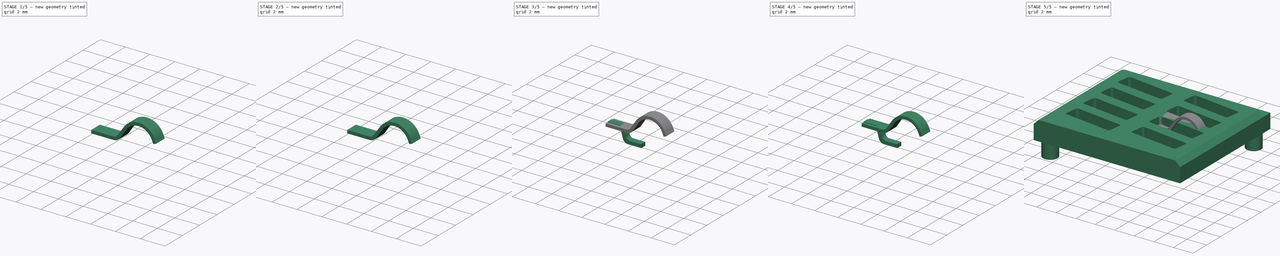
[diagram: build sequence overview — one tinted view per stage of 5, left to right]
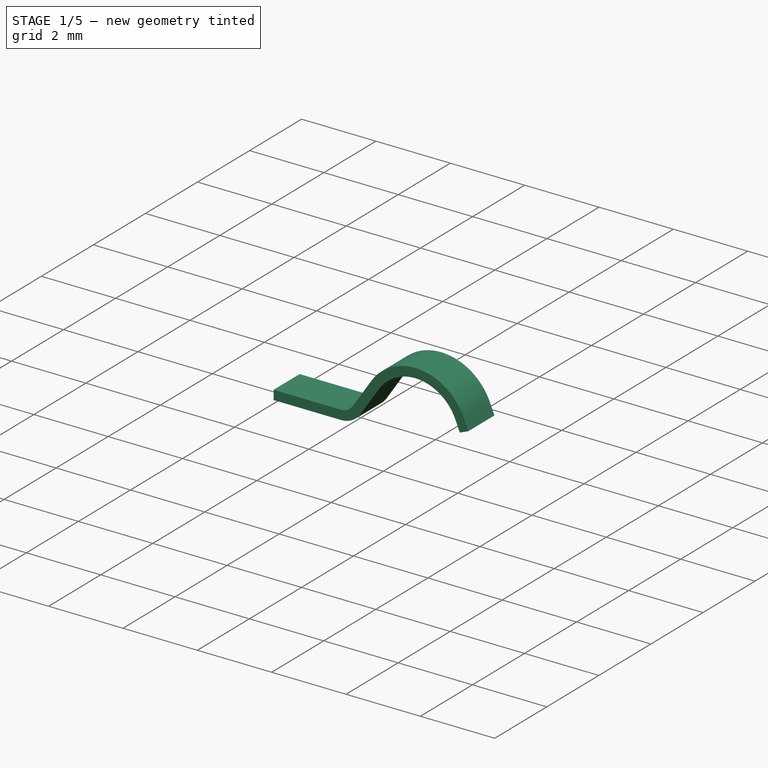
[diagram: stage 1 of 5 — iso view after this stage's code; geometry added in this stage tinted green]
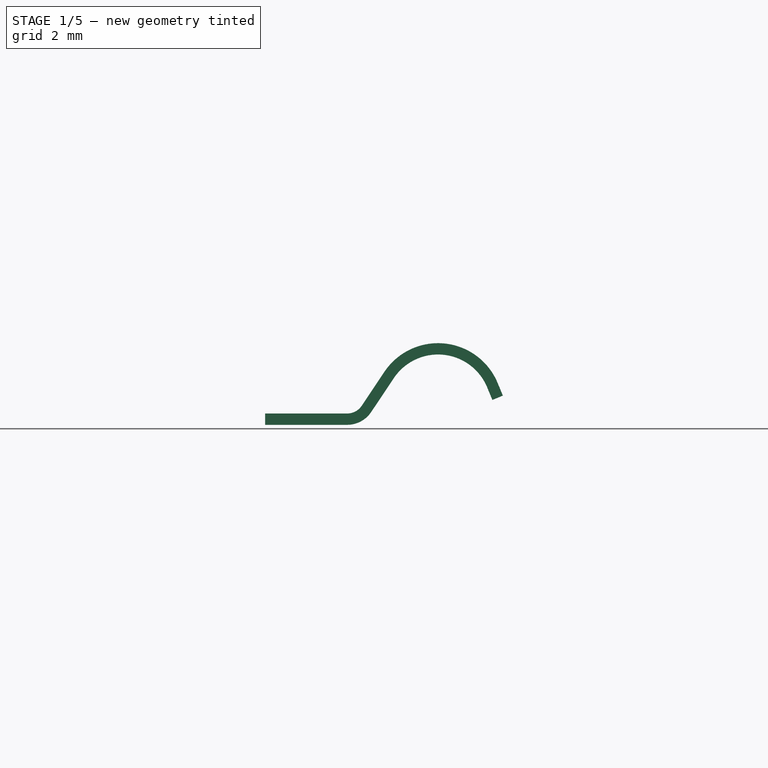
[diagram: stage 1 of 5 — front view after this stage's code; geometry added in this stage tinted green]
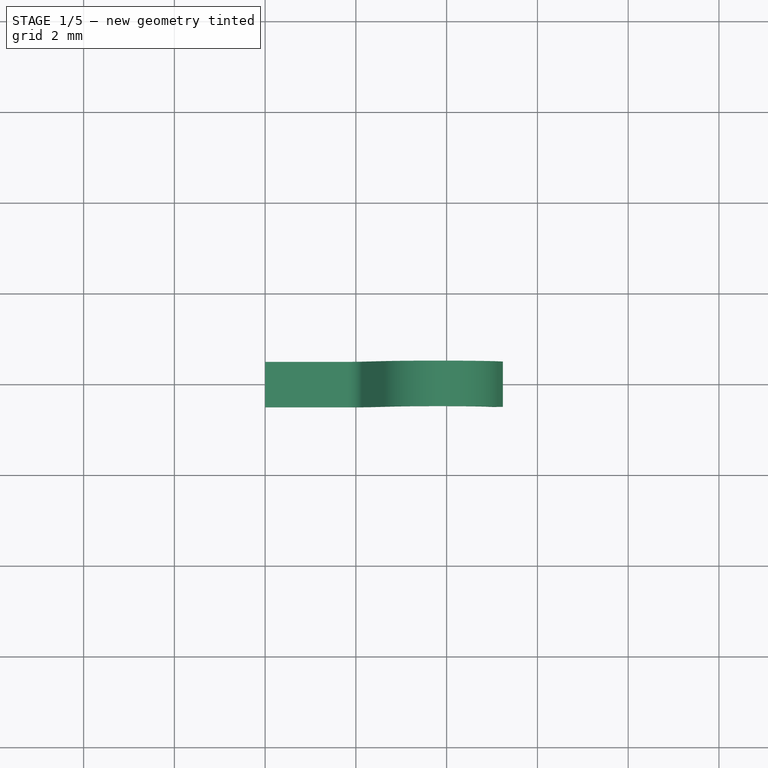
[diagram: stage 1 of 5 — top view after this stage's code; geometry added in this stage tinted green]
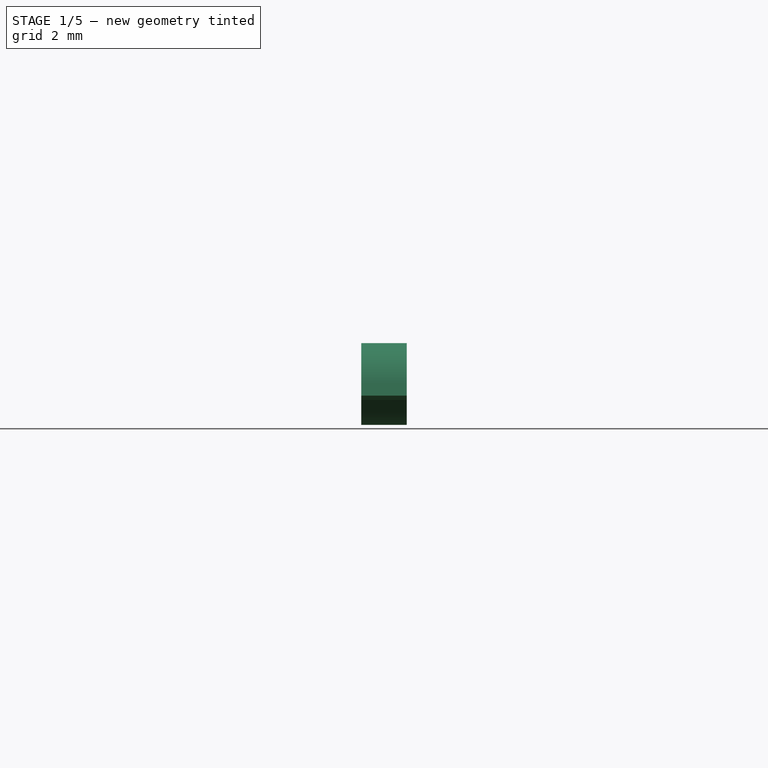
[diagram: stage 1 of 5 — right view after this stage's code; geometry added in this stage tinted green]
FCSTD DOCUMENT  (FreeCAD 0.18.4R)
Label: Amphenol_C707_10M006_052_2
License: All rights reserved
LicenseURL: http://en.wikipedia.org/wiki/All_rights_reserved
objects: Sketcher::SketchObject×19, PartDesign::Pad×18, PartDesign::Body×17, PartDesign::Pocket×1, PartDesign::Chamfer×1, App::Part×1
note: 75 computed .brp shape members not serialized (recipe doc carries the construction recipe); baked Part::Feature solids carry a one-line shape summary decoded from their .brp

FEATURE [PartDesign::Body] Body028  label="SpringContact8"
  Group = -> [Sketch030,Pad029]
  Origin = -> Origin025
  Placement = pos=(0,4.34,0) rot=(0,0,-1;0.1309rad)
  Tip = -> Pad029
FEATURE [Sketcher::SketchObject] Sketch031
  MapMode = 5
  Placement = pos=(0,0,0) rot=(1,0,0;1.5708rad)
  Support = -> [XZ_Plane026]
  sketch-geometry (15):
    g0: LineSegment StartX=2.33674 StartY=1.28281 StartZ=0 EndX=2.8356 EndY=2.02924 EndZ=0
    g1: LineSegment StartX=4.89307 StartY=1.82578 StartZ=0 EndX=5.00769 EndY=1.54854 EndZ=0
    g2: LineSegment StartX=0 StartY=1 StartZ=0 EndX=0 EndY=1.25 EndZ=0
    g3: ArcOfCircle CenterX=1.80757 CenterY=1.63647 CenterZ=0 NormalX=0 NormalY=0 NormalZ=1 AngleXU=0 Radius=0.636473 StartAngle=4.71239 EndAngle=5.69403
    g4: ArcOfCircle CenterX=3.81 CenterY=1.37802 CenterZ=0 NormalX=0 NormalY=0 NormalZ=1 AngleXU=0 Radius=1.17198 StartAngle=0.392021 EndAngle=2.55244
    g5: LineSegment StartX=5.00769 StartY=1.54854 StartZ=0 EndX=5.23873 EndY=1.64406 EndZ=0
    g6: LineSegment StartX=5.23873 StartY=1.64406 StartZ=0 EndX=5.12411 EndY=1.9213 EndZ=0
    g7: LineSegment StartX=0 StartY=1.25 StartZ=0 EndX=1.80757 EndY=1.25 EndZ=0
    g8: LineSegment StartX=2.12889 StartY=1.42173 StartZ=0 EndX=2.62775 EndY=2.16816 EndZ=0
    g9: ArcOfCircle CenterX=3.81 CenterY=1.37802 CenterZ=0 NormalX=0 NormalY=0 NormalZ=1 AngleXU=0 Radius=1.42198 StartAngle=0.392021 EndAngle=2.55244
    g10: ArcOfCircle CenterX=1.80757 CenterY=1.63647 CenterZ=0 NormalX=0 NormalY=0 NormalZ=1 AngleXU=0 Radius=0.386473 StartAngle=4.71239 EndAngle=5.69403
    g11: LineSegment [constr] StartX=0 StartY=2 StartZ=0 EndX=5.94744 EndY=2 EndZ=0
    g12: GeomPoint X=3.81 Y=2.8 Z=0
    g13: GeomPoint X=3.81 Y=2.55 Z=0
    g14: LineSegment StartX=0 StartY=1 StartZ=0 EndX=1.80757 EndY=1 EndZ=0
  constraints (36):
    c: Tangent(g0,g3) = -1.5708
    c: Tangent(g0,g4) = 1.5708
    c: Tangent(g1,g4) = 1.5708
    c: Coincident(g1,g5)
    c: Coincident(g5,g6)
    c: Coincident(g2,g7)
    c: Horizontal(g7)
    c: Tangent(g6,g9) = -1.5708
    c: Tangent(g8,g9) = 1.5708
    c: Perpendicular(g5,g1)
    c: Perpendicular(g6,g5)
    c: Tangent(g7,g10) = -1.5708
    c: Tangent(g8,g10) = -1.5708
    c: Parallel(g8,g0)
    c: Distance(g5) = 0.25
    c: Equal(g2,g5)
    c: PointOnObject(g11,g-2)
    c: Horizontal(g11)
    c: PointOnObject(g12,g9)
    c: Vertical(g12,g9)
    c: DistanceY(g11,g12) = 0.8
    c: PointOnObject(g13,g4)
    c: Vertical(g13,g4)
    c: DistanceY(g13,g12) = 0.25
    c: Vertical(g12,g13)
    c: DistanceX(g-1,g12) = 3.81
    c: DistanceY(g-1,g11) = 2
    c: DistanceY(g-1,g2) = 1
    c: Coincident(g14,g2)
    c: Coincident(g14,g3)
    c: Horizontal(g14)
    c: Distance(g6) = 0.3
    c: Distance(g7,g3) = 0.25
    c: Distance(g8,g0) = 0.25
    c: Vertical(g2)
    c: PointOnObject(g2,g-2)
FEATURE [PartDesign::Pad] Pad030  label="SpringContact_Pad004"
  Length = 1
  Length2 = 100
  Midplane = true
  Placement = pos=(0,0,0) rot=(1,0,0;1.5708rad)
  Profile = -> Sketch031
  Type = 0
FEATURE [PartDesign::Body] Body029  label="SpringContact1"
  Group = -> [Sketch031,Pad030]
  Origin = -> Origin026
  Placement = pos=(0,-4.32,0) rot=(0,0,-1;3.27249rad)
  Tip = -> Pad030
FEATURE [Sketcher::SketchObject] Sketch032
  MapMode = 5
  Placement = pos=(0,0,0) rot=(1,0,0;1.5708rad)
  Support = -> [XZ_Plane027]
  sketch-geometry (15):
    g0: LineSegment StartX=2.33674 StartY=1.28281 StartZ=0 EndX=2.8356 EndY=2.02924 EndZ=0
    g1: LineSegment StartX=4.89307 StartY=1.82578 StartZ=0 EndX=5.00769 EndY=1.54854 EndZ=0
    g2: LineSegment StartX=0 StartY=1 StartZ=0 EndX=0 EndY=1.25 EndZ=0
    g3: ArcOfCircle CenterX=1.80757 CenterY=1.63647 CenterZ=0 NormalX=0 NormalY=0 NormalZ=1 AngleXU=0 Radius=0.636473 StartAngle=4.71239 EndAngle=5.69403
    g4: ArcOfCircle CenterX=3.81 CenterY=1.37802 CenterZ=0 NormalX=0 NormalY=0 NormalZ=1 AngleXU=0 Radius=1.17198 StartAngle=0.392021 EndAngle=2.55244
    g5: LineSegment StartX=5.00769 StartY=1.54854 StartZ=0 EndX=5.23873 EndY=1.64406 EndZ=0
    g6: LineSegment StartX=5.23873 StartY=1.64406 StartZ=0 EndX=5.12411 EndY=1.9213 EndZ=0
    g7: LineSegment StartX=0 StartY=1.25 StartZ=0 EndX=1.80757 EndY=1.25 EndZ=0
    g8: LineSegment StartX=2.12889 StartY=1.42173 StartZ=0 EndX=2.62775 EndY=2.16816 EndZ=0
    g9: ArcOfCircle CenterX=3.81 CenterY=1.37802 CenterZ=0 NormalX=0 NormalY=0 NormalZ=1 AngleXU=0 Radius=1.42198 StartAngle=0.392021 EndAngle=2.55244
    g10: ArcOfCircle CenterX=1.80757 CenterY=1.63647 CenterZ=0 NormalX=0 NormalY=0 NormalZ=1 AngleXU=0 Radius=0.386473 StartAngle=4.71239 EndAngle=5.69403
    g11: LineSegment [constr] StartX=0 StartY=2 StartZ=0 EndX=5.94744 EndY=2 EndZ=0
    g12: GeomPoint X=3.81 Y=2.8 Z=0
    g13: GeomPoint X=3.81 Y=2.55 Z=0
    g14: LineSegment StartX=0 StartY=1 StartZ=0 EndX=1.80757 EndY=1 EndZ=0
  constraints (36):
    c: Tangent(g0,g3) = -1.5708
    c: Tangent(g0,g4) = 1.5708
    c: Tangent(g1,g4) = 1.5708
    c: Coincident(g1,g5)
    c: Coincident(g5,g6)
    c: Coincident(g2,g7)
    c: Horizontal(g7)
    c: Tangent(g6,g9) = -1.5708
    c: Tangent(g8,g9) = 1.5708
    c: Perpendicular(g5,g1)
    c: Perpendicular(g6,g5)
    c: Tangent(g7,g10) = -1.5708
    c: Tangent(g8,g10) = -1.5708
    c: Parallel(g8,g0)
    c: Distance(g5) = 0.25
    c: Equal(g2,g5)
    c: PointOnObject(g11,g-2)
    c: Horizontal(g11)
    c: PointOnObject(g12,g9)
    c: Vertical(g12,g9)
    c: DistanceY(g11,g12) = 0.8
    c: PointOnObject(g13,g4)
    c: Vertical(g13,g4)
    c: DistanceY(g13,g12) = 0.25
    c: Vertical(g12,g13)
    c: DistanceX(g-1,g12) = 3.81
    c: DistanceY(g-1,g11) = 2
    c: DistanceY(g-1,g2) = 1
    c: Coincident(g14,g2)
    c: Coincident(g14,g3)
    c: Horizontal(g14)
    c: Distance(g6) = 0.3
    c: Distance(g7,g3) = 0.25
    c: Distance(g8,g0) = 0.25
    c: Vertical(g2)
    c: PointOnObject(g2,g-2)
FEATURE [PartDesign::Pad] Pad031  label="SpringContact_Pad005"
  Length = 1
  Length2 = 100
  Midplane = true
  Placement = pos=(0,0,0) rot=(1,0,0;1.5708rad)
  Profile = -> Sketch032
  Type = 0
FEATURE [PartDesign::Body] Body030  label="SpringContact2"
  Group = -> [Sketch032,Pad031]
  Origin = -> Origin027
  Placement = pos=(0,-1.78,0) rot=(0,0,1;3.01069rad)
  Tip = -> Pad031
FEATURE [Sketcher::SketchObject] Sketch033
  MapMode = 5
  Placement = pos=(0,0,0) rot=(1,0,0;1.5708rad)
  Support = -> [XZ_Plane028]
  sketch-geometry (15):
    g0: LineSegment StartX=2.33674 StartY=1.28281 StartZ=0 EndX=2.8356 EndY=2.02924 EndZ=0
    g1: LineSegment StartX=4.89307 StartY=1.82578 StartZ=0 EndX=5.00769 EndY=1.54854 EndZ=0
    g2: LineSegment StartX=0 StartY=1 StartZ=0 EndX=0 EndY=1.25 EndZ=0
    g3: ArcOfCircle CenterX=1.80757 CenterY=1.63647 CenterZ=0 NormalX=0 NormalY=0 NormalZ=1 AngleXU=0 Radius=0.636473 StartAngle=4.71239 EndAngle=5.69403
    g4: ArcOfCircle CenterX=3.81 CenterY=1.37802 CenterZ=0 NormalX=0 NormalY=0 NormalZ=1 AngleXU=0 Radius=1.17198 StartAngle=0.392021 EndAngle=2.55244
    g5: LineSegment StartX=5.00769 StartY=1.54854 StartZ=0 EndX=5.23873 EndY=1.64406 EndZ=0
    g6: LineSegment StartX=5.23873 StartY=1.64406 StartZ=0 EndX=5.12411 EndY=1.9213 EndZ=0
    g7: LineSegment StartX=0 StartY=1.25 StartZ=0 EndX=1.80757 EndY=1.25 EndZ=0
    g8: LineSegment StartX=2.12889 StartY=1.42173 StartZ=0 EndX=2.62775 EndY=2.16816 EndZ=0
    g9: ArcOfCircle CenterX=3.81 CenterY=1.37802 CenterZ=0 NormalX=0 NormalY=0 NormalZ=1 AngleXU=0 Radius=1.42198 StartAngle=0.392021 EndAngle=2.55244
    g10: ArcOfCircle CenterX=1.80757 CenterY=1.63647 CenterZ=0 NormalX=0 NormalY=0 NormalZ=1 AngleXU=0 Radius=0.386473 StartAngle=4.71239 EndAngle=5.69403
    g11: LineSegment [constr] StartX=0 StartY=2 StartZ=0 EndX=5.94744 EndY=2 EndZ=0
    g12: GeomPoint X=3.81 Y=2.8 Z=0
    g13: GeomPoint X=3.81 Y=2.55 Z=0
    g14: LineSegment StartX=0 StartY=1 StartZ=0 EndX=1.80757 EndY=1 EndZ=0
  constraints (36):
    c: Tangent(g0,g3) = -1.5708
    c: Tangent(g0,g4) = 1.5708
    c: Tangent(g1,g4) = 1.5708
    c: Coincident(g1,g5)
    c: Coincident(g5,g6)
    c: Coincident(g2,g7)
    c: Horizontal(g7)
    c: Tangent(g6,g9) = -1.5708
    c: Tangent(g8,g9) = 1.5708
    c: Perpendicular(g5,g1)
    c: Perpendicular(g6,g5)
    c: Tangent(g7,g10) = -1.5708
    c: Tangent(g8,g10) = -1.5708
    c: Parallel(g8,g0)
    c: Distance(g5) = 0.25
    c: Equal(g2,g5)
    c: PointOnObject(g11,g-2)
    c: Horizontal(g11)
    c: PointOnObject(g12,g9)
    c: Vertical(g12,g9)
    c: DistanceY(g11,g12) = 0.8
    c: PointOnObject(g13,g4)
    c: Vertical(g13,g4)
    c: DistanceY(g13,g12) = 0.25
    c: Vertical(g12,g13)
    c: DistanceX(g-1,g12) = 3.81
    c: DistanceY(g-1,g11) = 2
    c: DistanceY(g-1,g2) = 1
    c: Coincident(g14,g2)
    c: Coincident(g14,g3)
    c: Horizontal(g14)
    c: Distance(g6) = 0.3
    c: Distance(g7,g3) = 0.25
    c: Distance(g8,g0) = 0.25
    c: Vertical(g2)
    c: PointOnObject(g2,g-2)
FEATURE [PartDesign::Pad] Pad032  label="SpringContact_Pad006"
  Length = 1
  Length2 = 100
  Midplane = true
  Placement = pos=(0,0,0) rot=(1,0,0;1.5708rad)
  Profile = -> Sketch033
  Type = 0
FEATURE [PartDesign::Body] Body031  label="SpringContact3"
  Group = -> [Sketch033,Pad032]
  Origin = -> Origin028
  Placement = pos=(0,0.76,0) rot=(0,0,1;3.01069rad)
  Tip = -> Pad032
FEATURE [Sketcher::SketchObject] Sketch034
  MapMode = 5
  Placement = pos=(0,0,0) rot=(1,0,0;1.5708rad)
  Support = -> [XZ_Plane029]
  sketch-geometry (15):
    g0: LineSegment StartX=2.33674 StartY=1.28281 StartZ=0 EndX=2.8356 EndY=2.02924 EndZ=0
    g1: LineSegment StartX=4.89307 StartY=1.82578 StartZ=0 EndX=5.00769 EndY=1.54854 EndZ=0
    g2: LineSegment StartX=0 StartY=1 StartZ=0 EndX=0 EndY=1.25 EndZ=0
    g3: ArcOfCircle CenterX=1.80757 CenterY=1.63647 CenterZ=0 NormalX=0 NormalY=0 NormalZ=1 AngleXU=0 Radius=0.636473 StartAngle=4.71239 EndAngle=5.69403
    g4: ArcOfCircle CenterX=3.81 CenterY=1.37802 CenterZ=0 NormalX=0 NormalY=0 NormalZ=1 AngleXU=0 Radius=1.17198 StartAngle=0.392021 EndAngle=2.55244
    g5: LineSegment StartX=5.00769 StartY=1.54854 StartZ=0 EndX=5.23873 EndY=1.64406 EndZ=0
    g6: LineSegment StartX=5.23873 StartY=1.64406 StartZ=0 EndX=5.12411 EndY=1.9213 EndZ=0
    g7: LineSegment StartX=0 StartY=1.25 StartZ=0 EndX=1.80757 EndY=1.25 EndZ=0
    g8: LineSegment StartX=2.12889 StartY=1.42173 StartZ=0 EndX=2.62775 EndY=2.16816 EndZ=0
    g9: ArcOfCircle CenterX=3.81 CenterY=1.37802 CenterZ=0 NormalX=0 NormalY=0 NormalZ=1 AngleXU=0 Radius=1.42198 StartAngle=0.392021 EndAngle=2.55244
    g10: ArcOfCircle CenterX=1.80757 CenterY=1.63647 CenterZ=0 NormalX=0 NormalY=0 NormalZ=1 AngleXU=0 Radius=0.386473 StartAngle=4.71239 EndAngle=5.69403
    g11: LineSegment [constr] StartX=0 StartY=2 StartZ=0 EndX=5.94744 EndY=2 EndZ=0
    g12: GeomPoint X=3.81 Y=2.8 Z=0
    g13: GeomPoint X=3.81 Y=2.55 Z=0
    g14: LineSegment StartX=0 StartY=1 StartZ=0 EndX=1.80757 EndY=1 EndZ=0
  constraints (36):
    c: Tangent(g0,g3) = -1.5708
    c: Tangent(g0,g4) = 1.5708
    c: Tangent(g1,g4) = 1.5708
    c: Coincident(g1,g5)
    c: Coincident(g5,g6)
    c: Coincident(g2,g7)
    c: Horizontal(g7)
    c: Tangent(g6,g9) = -1.5708
    c: Tangent(g8,g9) = 1.5708
    c: Perpendicular(g5,g1)
    c: Perpendicular(g6,g5)
    c: Tangent(g7,g10) = -1.5708
    c: Tangent(g8,g10) = -1.5708
    c: Parallel(g8,g0)
    c: Distance(g5) = 0.25
    c: Equal(g2,g5)
    c: PointOnObject(g11,g-2)
    c: Horizontal(g11)
    c: PointOnObject(g12,g9)
    c: Vertical(g12,g9)
    c: DistanceY(g11,g12) = 0.8
    c: PointOnObject(g13,g4)
    c: Vertical(g13,g4)
    c: DistanceY(g13,g12) = 0.25
    c: Vertical(g12,g13)
    c: DistanceX(g-1,g12) = 3.81
    c: DistanceY(g-1,g11) = 2
    c: DistanceY(g-1,g2) = 1
    c: Coincident(g14,g2)
    c: Coincident(g14,g3)
    c: Horizontal(g14)
    c: Distance(g6) = 0.3
    c: Distance(g7,g3) = 0.25
    c: Distance(g8,g0) = 0.25
    c: Vertical(g2)
    c: PointOnObject(g2,g-2)
FEATURE [PartDesign::Pad] Pad033  label="SpringContact_Pad007"
  Length = 1
  Length2 = 100
  Midplane = true
  Placement = pos=(0,0,0) rot=(1,0,0;1.5708rad)
  Profile = -> Sketch034
  Type = 0
FEATURE [PartDesign::Body] Body032  label="SpringContact4"
  Group = -> [Sketch034,Pad033]
  Origin = -> Origin029
  Placement = pos=(0,3.3,0) rot=(0,0,1;3.01069rad)
  Tip = -> Pad033
FEATURE [App::Part] Part  label="Amphenol_C707_10M006_052_2"
  Group = -> [Body,Body017,Body018,Body019,Body020,Body021,Body022,Body023,Body024,Body025,Body026,Body027,Body028,Body029,Body030,Body031,Body032]
  Origin = -> Origin001
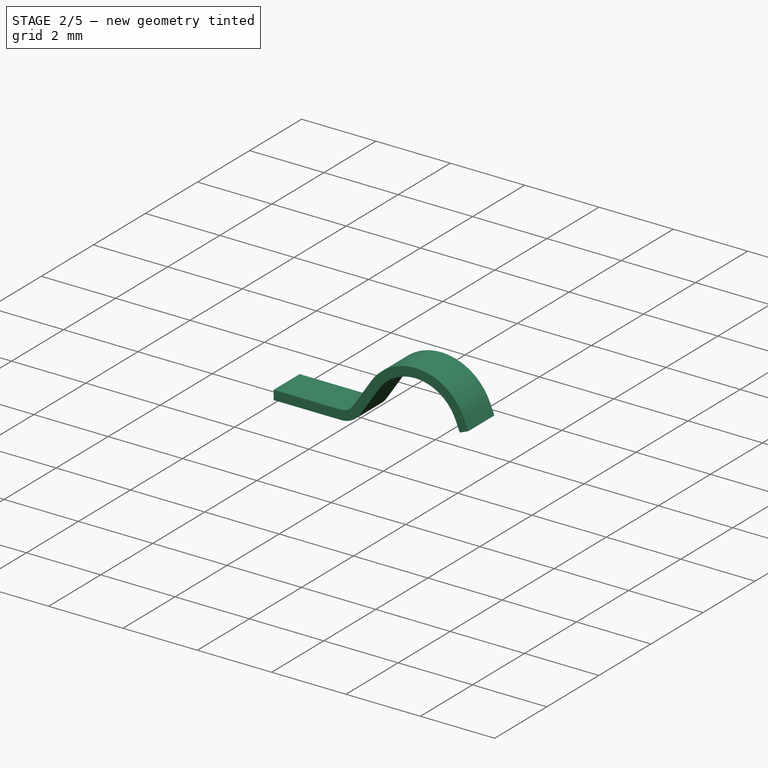
[diagram: stage 2 of 5 — iso view after this stage's code; geometry added in this stage tinted green]
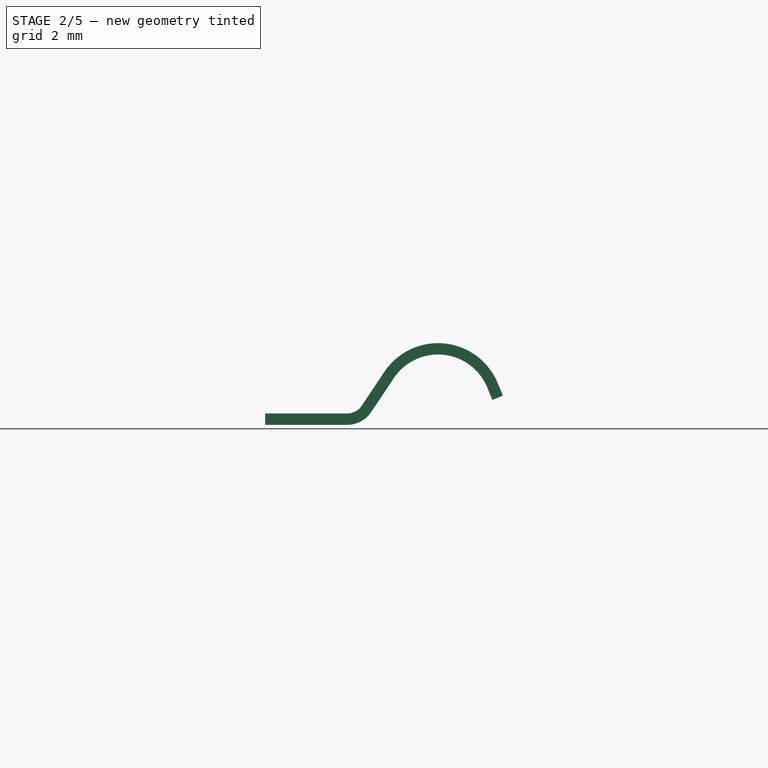
[diagram: stage 2 of 5 — front view after this stage's code; geometry added in this stage tinted green]
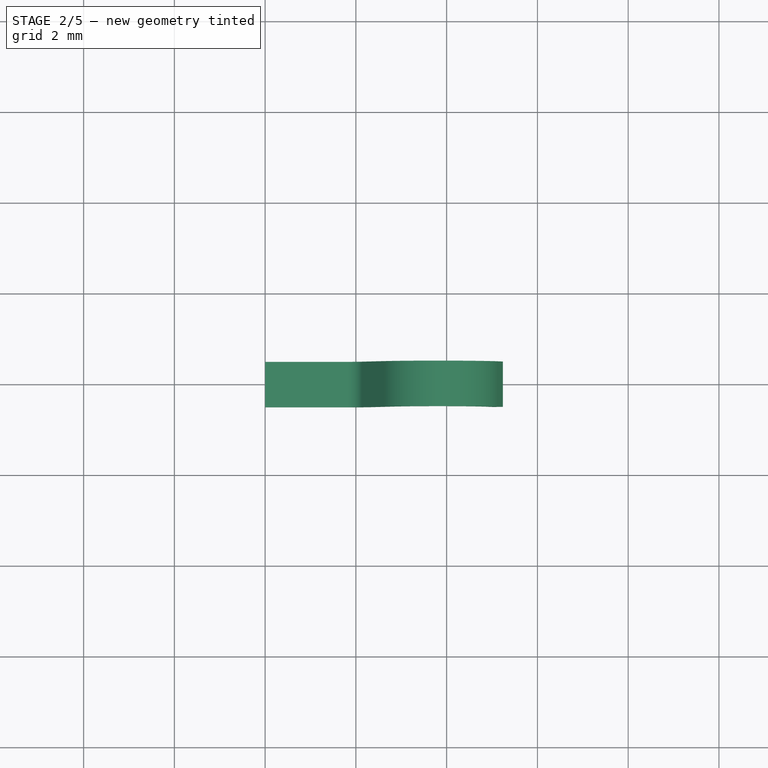
[diagram: stage 2 of 5 — top view after this stage's code; geometry added in this stage tinted green]
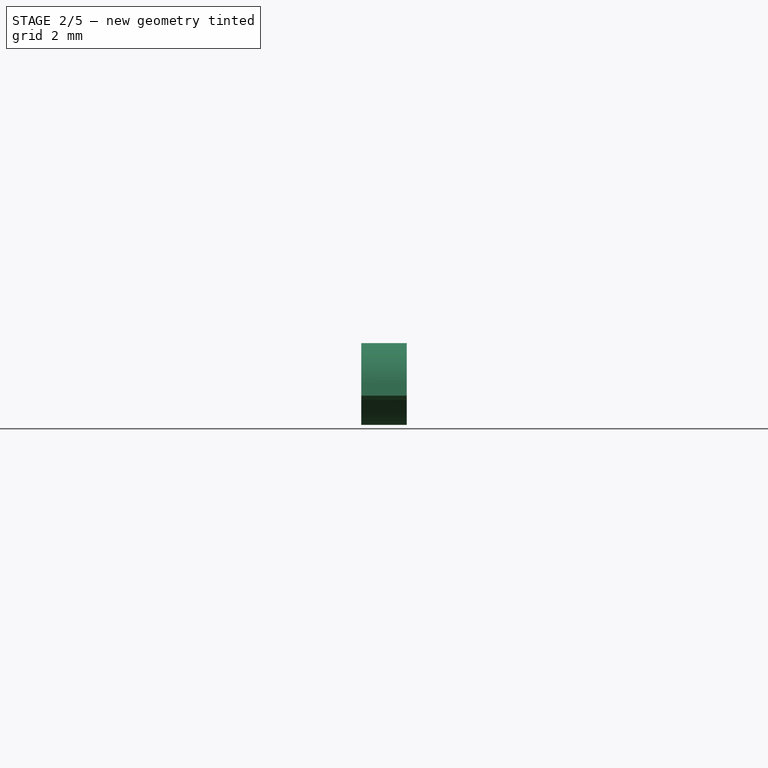
[diagram: stage 2 of 5 — right view after this stage's code; geometry added in this stage tinted green]
FEATURE [PartDesign::Body] Body024  label="Pin8"
  Group = -> [Sketch026,Pad025]
  Origin = -> Origin021
  Placement = pos=(-7.5,5.44,0) rot=(0,0,1;3.14159rad)
  Tip = -> Pad025
FEATURE [Sketcher::SketchObject] Sketch027
  MapMode = 5
  Placement = pos=(0,0,0) rot=(1,0,0;1.5708rad)
  Support = -> [XZ_Plane022]
  sketch-geometry (15):
    g0: LineSegment StartX=2.33674 StartY=1.28281 StartZ=0 EndX=2.8356 EndY=2.02924 EndZ=0
    g1: LineSegment StartX=4.89307 StartY=1.82578 StartZ=0 EndX=5.00769 EndY=1.54854 EndZ=0
    g2: LineSegment StartX=0 StartY=1 StartZ=0 EndX=0 EndY=1.25 EndZ=0
    g3: ArcOfCircle CenterX=1.80757 CenterY=1.63647 CenterZ=0 NormalX=0 NormalY=0 NormalZ=1 AngleXU=0 Radius=0.636473 StartAngle=4.71239 EndAngle=5.69403
    g4: ArcOfCircle CenterX=3.81 CenterY=1.37802 CenterZ=0 NormalX=0 NormalY=0 NormalZ=1 AngleXU=0 Radius=1.17198 StartAngle=0.392021 EndAngle=2.55244
    g5: LineSegment StartX=5.00769 StartY=1.54854 StartZ=0 EndX=5.23873 EndY=1.64406 EndZ=0
    g6: LineSegment StartX=5.23873 StartY=1.64406 StartZ=0 EndX=5.12411 EndY=1.9213 EndZ=0
    g7: LineSegment StartX=0 StartY=1.25 StartZ=0 EndX=1.80757 EndY=1.25 EndZ=0
    g8: LineSegment StartX=2.12889 StartY=1.42173 StartZ=0 EndX=2.62775 EndY=2.16816 EndZ=0
    g9: ArcOfCircle CenterX=3.81 CenterY=1.37802 CenterZ=0 NormalX=0 NormalY=0 NormalZ=1 AngleXU=0 Radius=1.42198 StartAngle=0.392021 EndAngle=2.55244
    g10: ArcOfCircle CenterX=1.80757 CenterY=1.63647 CenterZ=0 NormalX=0 NormalY=0 NormalZ=1 AngleXU=0 Radius=0.386473 StartAngle=4.71239 EndAngle=5.69403
    g11: LineSegment [constr] StartX=0 StartY=2 StartZ=0 EndX=5.94744 EndY=2 EndZ=0
    g12: GeomPoint X=3.81 Y=2.8 Z=0
    g13: GeomPoint X=3.81 Y=2.55 Z=0
    g14: LineSegment StartX=0 StartY=1 StartZ=0 EndX=1.80757 EndY=1 EndZ=0
  constraints (36):
    c: Tangent(g0,g3) = -1.5708
    c: Tangent(g0,g4) = 1.5708
    c: Tangent(g1,g4) = 1.5708
    c: Coincident(g1,g5)
    c: Coincident(g5,g6)
    c: Coincident(g2,g7)
    c: Horizontal(g7)
    c: Tangent(g6,g9) = -1.5708
    c: Tangent(g8,g9) = 1.5708
    c: Perpendicular(g5,g1)
    c: Perpendicular(g6,g5)
    c: Tangent(g7,g10) = -1.5708
    c: Tangent(g8,g10) = -1.5708
    c: Parallel(g8,g0)
    c: Distance(g5) = 0.25
    c: Equal(g2,g5)
    c: PointOnObject(g11,g-2)
    c: Horizontal(g11)
    c: PointOnObject(g12,g9)
    c: Vertical(g12,g9)
    c: DistanceY(g11,g12) = 0.8
    c: PointOnObject(g13,g4)
    c: Vertical(g13,g4)
    c: DistanceY(g13,g12) = 0.25
    c: Vertical(g12,g13)
    c: DistanceX(g-1,g12) = 3.81
    c: DistanceY(g-1,g11) = 2
    c: DistanceY(g-1,g2) = 1
    c: Coincident(g14,g2)
    c: Coincident(g14,g3)
    c: Horizontal(g14)
    c: Distance(g6) = 0.3
    c: Distance(g7,g3) = 0.25
    c: Distance(g8,g0) = 0.25
    c: Vertical(g2)
    c: PointOnObject(g2,g-2)
FEATURE [PartDesign::Pad] Pad026  label="SpringContact_Pad"
  Length = 1
  Length2 = 100
  Midplane = true
  Placement = pos=(0,0,0) rot=(1,0,0;1.5708rad)
  Profile = -> Sketch027
  Type = 0
FEATURE [PartDesign::Body] Body025  label="SpringContact5"
  Group = -> [Sketch027,Pad026]
  Origin = -> Origin022
  Placement = pos=(0,-3.28,0) rot=(0,0,1;-0.1309rad)
  Tip = -> Pad026
FEATURE [Sketcher::SketchObject] Sketch028
  MapMode = 5
  Placement = pos=(0,0,0) rot=(1,0,0;1.5708rad)
  Support = -> [XZ_Plane023]
  sketch-geometry (15):
    g0: LineSegment StartX=2.33674 StartY=1.28281 StartZ=0 EndX=2.8356 EndY=2.02924 EndZ=0
    g1: LineSegment StartX=4.89307 StartY=1.82578 StartZ=0 EndX=5.00769 EndY=1.54854 EndZ=0
    g2: LineSegment StartX=0 StartY=1 StartZ=0 EndX=0 EndY=1.25 EndZ=0
    g3: ArcOfCircle CenterX=1.80757 CenterY=1.63647 CenterZ=0 NormalX=0 NormalY=0 NormalZ=1 AngleXU=0 Radius=0.636473 StartAngle=4.71239 EndAngle=5.69403
    g4: ArcOfCircle CenterX=3.81 CenterY=1.37802 CenterZ=0 NormalX=0 NormalY=0 NormalZ=1 AngleXU=0 Radius=1.17198 StartAngle=0.392021 EndAngle=2.55244
    g5: LineSegment StartX=5.00769 StartY=1.54854 StartZ=0 EndX=5.23873 EndY=1.64406 EndZ=0
    g6: LineSegment StartX=5.23873 StartY=1.64406 StartZ=0 EndX=5.12411 EndY=1.9213 EndZ=0
    g7: LineSegment StartX=0 StartY=1.25 StartZ=0 EndX=1.80757 EndY=1.25 EndZ=0
    g8: LineSegment StartX=2.12889 StartY=1.42173 StartZ=0 EndX=2.62775 EndY=2.16816 EndZ=0
    g9: ArcOfCircle CenterX=3.81 CenterY=1.37802 CenterZ=0 NormalX=0 NormalY=0 NormalZ=1 AngleXU=0 Radius=1.42198 StartAngle=0.392021 EndAngle=2.55244
    g10: ArcOfCircle CenterX=1.80757 CenterY=1.63647 CenterZ=0 NormalX=0 NormalY=0 NormalZ=1 AngleXU=0 Radius=0.386473 StartAngle=4.71239 EndAngle=5.69403
    g11: LineSegment [constr] StartX=0 StartY=2 StartZ=0 EndX=5.94744 EndY=2 EndZ=0
    g12: GeomPoint X=3.81 Y=2.8 Z=0
    g13: GeomPoint X=3.81 Y=2.55 Z=0
    g14: LineSegment StartX=0 StartY=1 StartZ=0 EndX=1.80757 EndY=1 EndZ=0
  constraints (36):
    c: Tangent(g0,g3) = -1.5708
    c: Tangent(g0,g4) = 1.5708
    c: Tangent(g1,g4) = 1.5708
    c: Coincident(g1,g5)
    c: Coincident(g5,g6)
    c: Coincident(g2,g7)
    c: Horizontal(g7)
    c: Tangent(g6,g9) = -1.5708
    c: Tangent(g8,g9) = 1.5708
    c: Perpendicular(g5,g1)
    c: Perpendicular(g6,g5)
    c: Tangent(g7,g10) = -1.5708
    c: Tangent(g8,g10) = -1.5708
    c: Parallel(g8,g0)
    c: Distance(g5) = 0.25
    c: Equal(g2,g5)
    c: PointOnObject(g11,g-2)
    c: Horizontal(g11)
    c: PointOnObject(g12,g9)
    c: Vertical(g12,g9)
    c: DistanceY(g11,g12) = 0.8
    c: PointOnObject(g13,g4)
    c: Vertical(g13,g4)
    c: DistanceY(g13,g12) = 0.25
    c: Vertical(g12,g13)
    c: DistanceX(g-1,g12) = 3.81
    c: DistanceY(g-1,g11) = 2
    c: DistanceY(g-1,g2) = 1
    c: Coincident(g14,g2)
    c: Coincident(g14,g3)
    c: Horizontal(g14)
    c: Distance(g6) = 0.3
    c: Distance(g7,g3) = 0.25
    c: Distance(g8,g0) = 0.25
    c: Vertical(g2)
    c: PointOnObject(g2,g-2)
FEATURE [PartDesign::Pad] Pad027  label="SpringContact_Pad001"
  Length = 1
  Length2 = 100
  Midplane = true
  Placement = pos=(0,0,0) rot=(1,0,0;1.5708rad)
  Profile = -> Sketch028
  Type = 0
FEATURE [PartDesign::Body] Body026  label="SpringContact6"
  Group = -> [Sketch028,Pad027]
  Origin = -> Origin023
  Placement = pos=(0,-0.74,0) rot=(0,0,-1;0.1309rad)
  Tip = -> Pad027
FEATURE [Sketcher::SketchObject] Sketch029
  MapMode = 5
  Placement = pos=(0,0,0) rot=(1,0,0;1.5708rad)
  Support = -> [XZ_Plane024]
  sketch-geometry (15):
    g0: LineSegment StartX=2.33674 StartY=1.28281 StartZ=0 EndX=2.8356 EndY=2.02924 EndZ=0
    g1: LineSegment StartX=4.89307 StartY=1.82578 StartZ=0 EndX=5.00769 EndY=1.54854 EndZ=0
    g2: LineSegment StartX=0 StartY=1 StartZ=0 EndX=0 EndY=1.25 EndZ=0
    g3: ArcOfCircle CenterX=1.80757 CenterY=1.63647 CenterZ=0 NormalX=0 NormalY=0 NormalZ=1 AngleXU=0 Radius=0.636473 StartAngle=4.71239 EndAngle=5.69403
    g4: ArcOfCircle CenterX=3.81 CenterY=1.37802 CenterZ=0 NormalX=0 NormalY=0 NormalZ=1 AngleXU=0 Radius=1.17198 StartAngle=0.392021 EndAngle=2.55244
    g5: LineSegment StartX=5.00769 StartY=1.54854 StartZ=0 EndX=5.23873 EndY=1.64406 EndZ=0
    g6: LineSegment StartX=5.23873 StartY=1.64406 StartZ=0 EndX=5.12411 EndY=1.9213 EndZ=0
    g7: LineSegment StartX=0 StartY=1.25 StartZ=0 EndX=1.80757 EndY=1.25 EndZ=0
    g8: LineSegment StartX=2.12889 StartY=1.42173 StartZ=0 EndX=2.62775 EndY=2.16816 EndZ=0
    g9: ArcOfCircle CenterX=3.81 CenterY=1.37802 CenterZ=0 NormalX=0 NormalY=0 NormalZ=1 AngleXU=0 Radius=1.42198 StartAngle=0.392021 EndAngle=2.55244
    g10: ArcOfCircle CenterX=1.80757 CenterY=1.63647 CenterZ=0 NormalX=0 NormalY=0 NormalZ=1 AngleXU=0 Radius=0.386473 StartAngle=4.71239 EndAngle=5.69403
    g11: LineSegment [constr] StartX=0 StartY=2 StartZ=0 EndX=5.94744 EndY=2 EndZ=0
    g12: GeomPoint X=3.81 Y=2.8 Z=0
    g13: GeomPoint X=3.81 Y=2.55 Z=0
    g14: LineSegment StartX=0 StartY=1 StartZ=0 EndX=1.80757 EndY=1 EndZ=0
  constraints (36):
    c: Tangent(g0,g3) = -1.5708
    c: Tangent(g0,g4) = 1.5708
    c: Tangent(g1,g4) = 1.5708
    c: Coincident(g1,g5)
    c: Coincident(g5,g6)
    c: Coincident(g2,g7)
    c: Horizontal(g7)
    c: Tangent(g6,g9) = -1.5708
    c: Tangent(g8,g9) = 1.5708
    c: Perpendicular(g5,g1)
    c: Perpendicular(g6,g5)
    c: Tangent(g7,g10) = -1.5708
    c: Tangent(g8,g10) = -1.5708
    c: Parallel(g8,g0)
    c: Distance(g5) = 0.25
    c: Equal(g2,g5)
    c: PointOnObject(g11,g-2)
    c: Horizontal(g11)
    c: PointOnObject(g12,g9)
    c: Vertical(g12,g9)
    c: DistanceY(g11,g12) = 0.8
    c: PointOnObject(g13,g4)
    c: Vertical(g13,g4)
    c: DistanceY(g13,g12) = 0.25
    c: Vertical(g12,g13)
    c: DistanceX(g-1,g12) = 3.81
    c: DistanceY(g-1,g11) = 2
    c: DistanceY(g-1,g2) = 1
    c: Coincident(g14,g2)
    c: Coincident(g14,g3)
    c: Horizontal(g14)
    c: Distance(g6) = 0.3
    c: Distance(g7,g3) = 0.25
    c: Distance(g8,g0) = 0.25
    c: Vertical(g2)
    c: PointOnObject(g2,g-2)
FEATURE [PartDesign::Pad] Pad028  label="SpringContact_Pad002"
  Length = 1
  Length2 = 100
  Midplane = true
  Placement = pos=(0,0,0) rot=(1,0,0;1.5708rad)
  Profile = -> Sketch029
  Type = 0
FEATURE [PartDesign::Body] Body027  label="SpringContact7"
  Group = -> [Sketch029,Pad028]
  Origin = -> Origin024
  Placement = pos=(0,1.8,0) rot=(0,0,-1;0.1309rad)
  Tip = -> Pad028
FEATURE [Sketcher::SketchObject] Sketch030
  MapMode = 5
  Placement = pos=(0,0,0) rot=(1,0,0;1.5708rad)
  Support = -> [XZ_Plane025]
  sketch-geometry (15):
    g0: LineSegment StartX=2.33674 StartY=1.28281 StartZ=0 EndX=2.8356 EndY=2.02924 EndZ=0
    g1: LineSegment StartX=4.89307 StartY=1.82578 StartZ=0 EndX=5.00769 EndY=1.54854 EndZ=0
    g2: LineSegment StartX=0 StartY=1 StartZ=0 EndX=0 EndY=1.25 EndZ=0
    g3: ArcOfCircle CenterX=1.80757 CenterY=1.63647 CenterZ=0 NormalX=0 NormalY=0 NormalZ=1 AngleXU=0 Radius=0.636473 StartAngle=4.71239 EndAngle=5.69403
    g4: ArcOfCircle CenterX=3.81 CenterY=1.37802 CenterZ=0 NormalX=0 NormalY=0 NormalZ=1 AngleXU=0 Radius=1.17198 StartAngle=0.392021 EndAngle=2.55244
    g5: LineSegment StartX=5.00769 StartY=1.54854 StartZ=0 EndX=5.23873 EndY=1.64406 EndZ=0
    g6: LineSegment StartX=5.23873 StartY=1.64406 StartZ=0 EndX=5.12411 EndY=1.9213 EndZ=0
    g7: LineSegment StartX=0 StartY=1.25 StartZ=0 EndX=1.80757 EndY=1.25 EndZ=0
    g8: LineSegment StartX=2.12889 StartY=1.42173 StartZ=0 EndX=2.62775 EndY=2.16816 EndZ=0
    g9: ArcOfCircle CenterX=3.81 CenterY=1.37802 CenterZ=0 NormalX=0 NormalY=0 NormalZ=1 AngleXU=0 Radius=1.42198 StartAngle=0.392021 EndAngle=2.55244
    g10: ArcOfCircle CenterX=1.80757 CenterY=1.63647 CenterZ=0 NormalX=0 NormalY=0 NormalZ=1 AngleXU=0 Radius=0.386473 StartAngle=4.71239 EndAngle=5.69403
    g11: LineSegment [constr] StartX=0 StartY=2 StartZ=0 EndX=5.94744 EndY=2 EndZ=0
    g12: GeomPoint X=3.81 Y=2.8 Z=0
    g13: GeomPoint X=3.81 Y=2.55 Z=0
    g14: LineSegment StartX=0 StartY=1 StartZ=0 EndX=1.80757 EndY=1 EndZ=0
  constraints (36):
    c: Tangent(g0,g3) = -1.5708
    c: Tangent(g0,g4) = 1.5708
    c: Tangent(g1,g4) = 1.5708
    c: Coincident(g1,g5)
    c: Coincident(g5,g6)
    c: Coincident(g2,g7)
    c: Horizontal(g7)
    c: Tangent(g6,g9) = -1.5708
    c: Tangent(g8,g9) = 1.5708
    c: Perpendicular(g5,g1)
    c: Perpendicular(g6,g5)
    c: Tangent(g7,g10) = -1.5708
    c: Tangent(g8,g10) = -1.5708
    c: Parallel(g8,g0)
    c: Distance(g5) = 0.25
    c: Equal(g2,g5)
    c: PointOnObject(g11,g-2)
    c: Horizontal(g11)
    c: PointOnObject(g12,g9)
    c: Vertical(g12,g9)
    c: DistanceY(g11,g12) = 0.8
    c: PointOnObject(g13,g4)
    c: Vertical(g13,g4)
    c: DistanceY(g13,g12) = 0.25
    c: Vertical(g12,g13)
    c: DistanceX(g-1,g12) = 3.81
    c: DistanceY(g-1,g11) = 2
    c: DistanceY(g-1,g2) = 1
    c: Coincident(g14,g2)
    c: Coincident(g14,g3)
    c: Horizontal(g14)
    c: Distance(g6) = 0.3
    c: Distance(g7,g3) = 0.25
    c: Distance(g8,g0) = 0.25
    c: Vertical(g2)
    c: PointOnObject(g2,g-2)
FEATURE [PartDesign::Pad] Pad029  label="SpringContact_Pad003"
  Length = 1
  Length2 = 100
  Midplane = true
  Placement = pos=(0,0,0) rot=(1,0,0;1.5708rad)
  Profile = -> Sketch030
  Type = 0
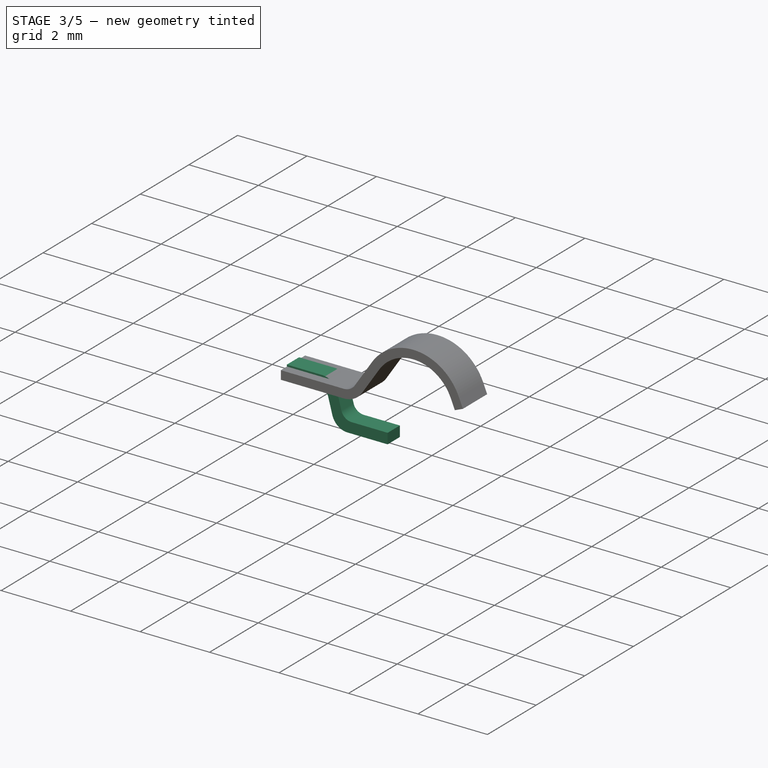
[diagram: stage 3 of 5 — iso view after this stage's code; geometry added in this stage tinted green]
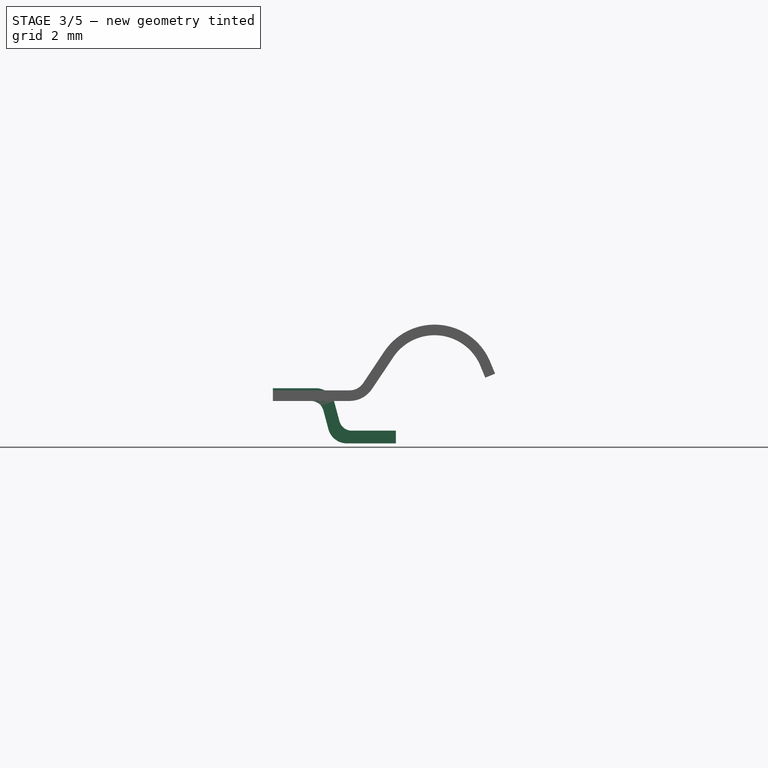
[diagram: stage 3 of 5 — front view after this stage's code; geometry added in this stage tinted green]
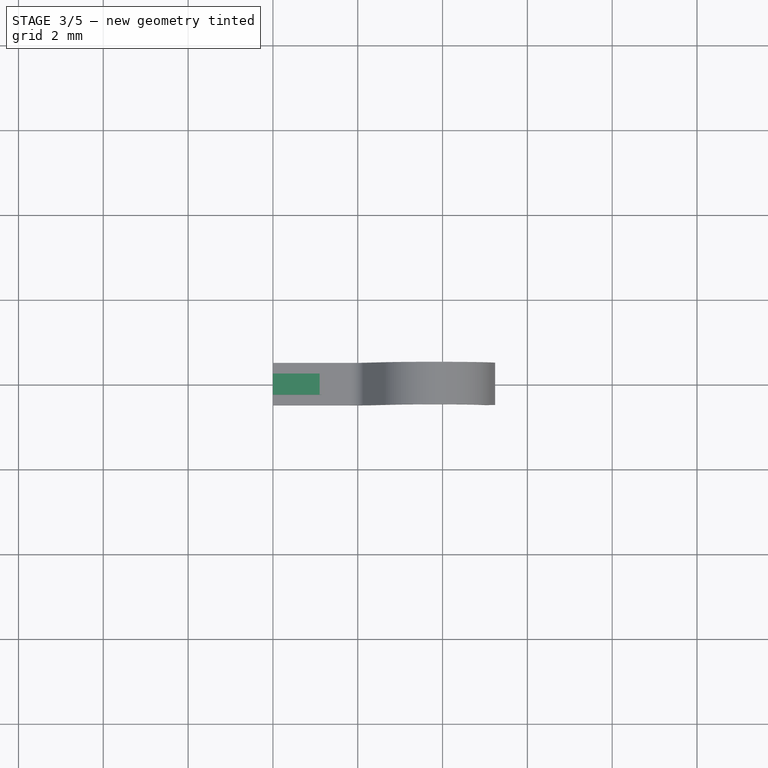
[diagram: stage 3 of 5 — top view after this stage's code; geometry added in this stage tinted green]
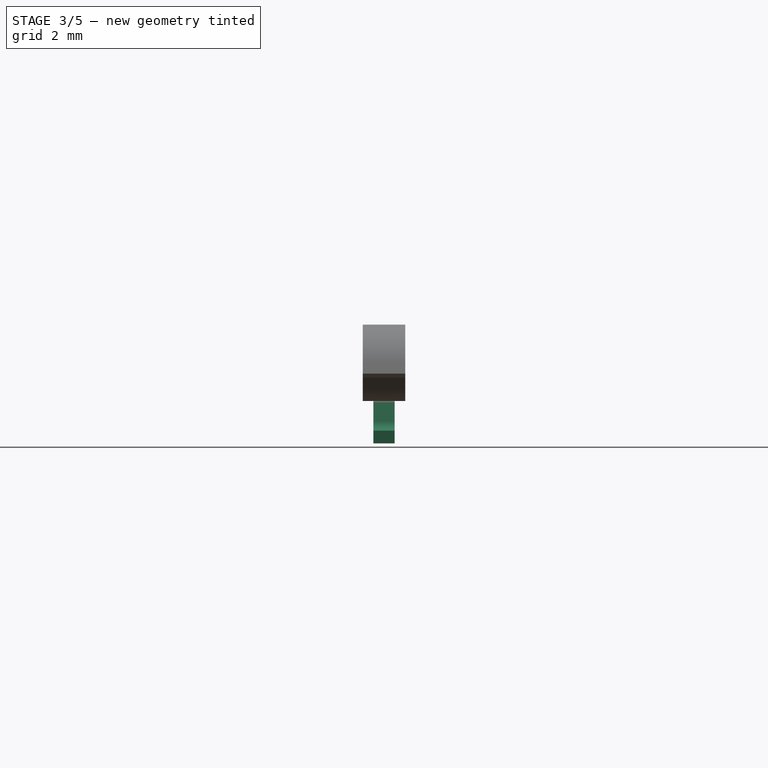
[diagram: stage 3 of 5 — right view after this stage's code; geometry added in this stage tinted green]
FEATURE [PartDesign::Body] Body020  label="Pin4"
  Group = -> [Sketch022,Pad021]
  Origin = -> Origin017
  Placement = pos=(7.5,2.2,0) rot=(0,0,1;0rad)
  Tip = -> Pad021
FEATURE [Sketcher::SketchObject] Sketch023
  MapMode = 5
  Placement = pos=(0,0,0) rot=(1,0,0;1.5708rad)
  Support = -> [XZ_Plane018]
  sketch-geometry (13):
    g0: LineSegment StartX=0 StartY=1 StartZ=0 EndX=0.9 EndY=1 EndZ=0
    g1: LineSegment StartX=1.18978 StartY=0.777646 StartZ=0 EndX=1.30878 EndY=0.333531 EndZ=0
    g2: LineSegment StartX=1.74344 StartY=0 StartZ=0 EndX=2.9 EndY=0 EndZ=0
    g3: LineSegment StartX=2.9 StartY=0 StartZ=0 EndX=2.9 EndY=0.3 EndZ=0
    g4: LineSegment StartX=2.9 StartY=0.3 StartZ=0 EndX=1.85854 EndY=0.3 EndZ=0
    g5: LineSegment StartX=1.56877 StartY=0.522354 StartZ=0 EndX=1.44977 EndY=0.966469 EndZ=0
    g6: LineSegment StartX=1.0151 StartY=1.3 StartZ=0 EndX=0 EndY=1.3 EndZ=0
    g7: LineSegment StartX=0 StartY=1.3 StartZ=0 EndX=0 EndY=1 EndZ=0
    g8: ArcOfCircle CenterX=1.74344 CenterY=0.45 CenterZ=0 NormalX=0 NormalY=0 NormalZ=1 AngleXU=0 Radius=0.45 StartAngle=3.40339 EndAngle=4.71239
    g9: ArcOfCircle CenterX=0.9 CenterY=0.7 CenterZ=0 NormalX=0 NormalY=0 NormalZ=1 AngleXU=0 Radius=0.3 StartAngle=0.261799 EndAngle=1.5708
    g10: ArcOfCircle CenterX=1.0151 CenterY=0.85 CenterZ=0 NormalX=0 NormalY=0 NormalZ=1 AngleXU=0 Radius=0.45 StartAngle=0.261799 EndAngle=1.5708
    g11: ArcOfCircle CenterX=1.85854 CenterY=0.6 CenterZ=0 NormalX=0 NormalY=0 NormalZ=1 AngleXU=0 Radius=0.3 StartAngle=3.40339 EndAngle=4.71239
    g12: LineSegment [constr] StartX=1.25062 StartY=0.550567 StartZ=0 EndX=1.5404 EndY=0.628213 EndZ=0
  constraints (35):
    c: Horizontal(g0)
    c: PointOnObject(g2,g-1)
    c: Horizontal(g2)
    c: Coincident(g2,g3)
    c: Vertical(g3)
    c: Coincident(g3,g4)
    c: Horizontal(g4)
    c: PointOnObject(g6,g-2)
    c: Horizontal(g6)
    c: Coincident(g6,g7)
    c: Coincident(g0,g7)
    c: Vertical(g7)
    c: Parallel(g1,g5)
    c: Tangent(g1,g8) = -1.5708
    c: Tangent(g2,g8) = -1.5708
    c: Tangent(g0,g9) = 1.5708
    c: Tangent(g1,g9) = 1.5708
    c: Tangent(g5,g10) = -1.5708
    c: Tangent(g6,g10) = -1.5708
    c: Tangent(g4,g11) = 1.5708
    c: Tangent(g5,g11) = 1.5708
    c: DistanceY(g3,g3) = 0.3
    c: DistanceY(g7,g7) = 0.3
    c: DistanceX(g0,g0) = 0.9
    c: DistanceY(g-1,g0) = 1
    c: DistanceX(g-1,g2) = 2.9
    c: Equal(g9,g11)
    c: Equal(g10,g8)
    c: PointOnObject(g12,g5)
    c: Perpendicular(g12,g1)
    c: Distance(g12) = 0.3
    c: Angle(g1,g-1) = 1.309
    c: Radius(g8) = 0.45
    c: Radius(g9) = 0.3
    c: PointOnObject(g12,g1)
FEATURE [PartDesign::Pad] Pad022  label="Pin_Pad004"
  Length = 0.5
  Length2 = 100
  Midplane = true
  Placement = pos=(0,0,0) rot=(1,0,0;1.5708rad)
  Profile = -> Sketch023
  Type = 0
FEATURE [PartDesign::Body] Body021  label="Pin5"
  Group = -> [Sketch023,Pad022]
  Origin = -> Origin018
  Placement = pos=(-7.5,-2.18,0) rot=(0,0,1;3.14159rad)
  Tip = -> Pad022
FEATURE [Sketcher::SketchObject] Sketch024
  MapMode = 5
  Placement = pos=(0,0,0) rot=(1,0,0;1.5708rad)
  Support = -> [XZ_Plane019]
  sketch-geometry (13):
    g0: LineSegment StartX=0 StartY=1 StartZ=0 EndX=0.9 EndY=1 EndZ=0
    g1: LineSegment StartX=1.18978 StartY=0.777646 StartZ=0 EndX=1.30878 EndY=0.333531 EndZ=0
    g2: LineSegment StartX=1.74344 StartY=0 StartZ=0 EndX=2.9 EndY=0 EndZ=0
    g3: LineSegment StartX=2.9 StartY=0 StartZ=0 EndX=2.9 EndY=0.3 EndZ=0
    g4: LineSegment StartX=2.9 StartY=0.3 StartZ=0 EndX=1.85854 EndY=0.3 EndZ=0
    g5: LineSegment StartX=1.56877 StartY=0.522354 StartZ=0 EndX=1.44977 EndY=0.966469 EndZ=0
    g6: LineSegment StartX=1.0151 StartY=1.3 StartZ=0 EndX=0 EndY=1.3 EndZ=0
    g7: LineSegment StartX=0 StartY=1.3 StartZ=0 EndX=0 EndY=1 EndZ=0
    g8: ArcOfCircle CenterX=1.74344 CenterY=0.45 CenterZ=0 NormalX=0 NormalY=0 NormalZ=1 AngleXU=0 Radius=0.45 StartAngle=3.40339 EndAngle=4.71239
    g9: ArcOfCircle CenterX=0.9 CenterY=0.7 CenterZ=0 NormalX=0 NormalY=0 NormalZ=1 AngleXU=0 Radius=0.3 StartAngle=0.261799 EndAngle=1.5708
    g10: ArcOfCircle CenterX=1.0151 CenterY=0.85 CenterZ=0 NormalX=0 NormalY=0 NormalZ=1 AngleXU=0 Radius=0.45 StartAngle=0.261799 EndAngle=1.5708
    g11: ArcOfCircle CenterX=1.85854 CenterY=0.6 CenterZ=0 NormalX=0 NormalY=0 NormalZ=1 AngleXU=0 Radius=0.3 StartAngle=3.40339 EndAngle=4.71239
    g12: LineSegment [constr] StartX=1.25062 StartY=0.550567 StartZ=0 EndX=1.5404 EndY=0.628213 EndZ=0
  constraints (35):
    c: Horizontal(g0)
    c: PointOnObject(g2,g-1)
    c: Horizontal(g2)
    c: Coincident(g2,g3)
    c: Vertical(g3)
    c: Coincident(g3,g4)
    c: Horizontal(g4)
    c: PointOnObject(g6,g-2)
    c: Horizontal(g6)
    c: Coincident(g6,g7)
    c: Coincident(g0,g7)
    c: Vertical(g7)
    c: Parallel(g1,g5)
    c: Tangent(g1,g8) = -1.5708
    c: Tangent(g2,g8) = -1.5708
    c: Tangent(g0,g9) = 1.5708
    c: Tangent(g1,g9) = 1.5708
    c: Tangent(g5,g10) = -1.5708
    c: Tangent(g6,g10) = -1.5708
    c: Tangent(g4,g11) = 1.5708
    c: Tangent(g5,g11) = 1.5708
    c: DistanceY(g3,g3) = 0.3
    c: DistanceY(g7,g7) = 0.3
    c: DistanceX(g0,g0) = 0.9
    c: DistanceY(g-1,g0) = 1
    c: DistanceX(g-1,g2) = 2.9
    c: Equal(g9,g11)
    c: Equal(g10,g8)
    c: PointOnObject(g12,g5)
    c: Perpendicular(g12,g1)
    c: Distance(g12) = 0.3
    c: Angle(g1,g-1) = 1.309
    c: Radius(g8) = 0.45
    c: Radius(g9) = 0.3
    c: PointOnObject(g12,g1)
FEATURE [PartDesign::Pad] Pad023  label="Pin_Pad005"
  Length = 0.5
  Length2 = 100
  Midplane = true
  Placement = pos=(0,0,0) rot=(1,0,0;1.5708rad)
  Profile = -> Sketch024
  Type = 0
FEATURE [PartDesign::Body] Body022  label="Pin6"
  Group = -> [Sketch024,Pad023]
  Origin = -> Origin019
  Placement = pos=(-7.5,0.36,0) rot=(0,0,1;3.14159rad)
  Tip = -> Pad023
FEATURE [Sketcher::SketchObject] Sketch025
  MapMode = 5
  Placement = pos=(0,0,0) rot=(1,0,0;1.5708rad)
  Support = -> [XZ_Plane020]
  sketch-geometry (13):
    g0: LineSegment StartX=0 StartY=1 StartZ=0 EndX=0.9 EndY=1 EndZ=0
    g1: LineSegment StartX=1.18978 StartY=0.777646 StartZ=0 EndX=1.30878 EndY=0.333531 EndZ=0
    g2: LineSegment StartX=1.74344 StartY=0 StartZ=0 EndX=2.9 EndY=0 EndZ=0
    g3: LineSegment StartX=2.9 StartY=0 StartZ=0 EndX=2.9 EndY=0.3 EndZ=0
    g4: LineSegment StartX=2.9 StartY=0.3 StartZ=0 EndX=1.85854 EndY=0.3 EndZ=0
    g5: LineSegment StartX=1.56877 StartY=0.522354 StartZ=0 EndX=1.44977 EndY=0.966469 EndZ=0
    g6: LineSegment StartX=1.0151 StartY=1.3 StartZ=0 EndX=0 EndY=1.3 EndZ=0
    g7: LineSegment StartX=0 StartY=1.3 StartZ=0 EndX=0 EndY=1 EndZ=0
    g8: ArcOfCircle CenterX=1.74344 CenterY=0.45 CenterZ=0 NormalX=0 NormalY=0 NormalZ=1 AngleXU=0 Radius=0.45 StartAngle=3.40339 EndAngle=4.71239
    g9: ArcOfCircle CenterX=0.9 CenterY=0.7 CenterZ=0 NormalX=0 NormalY=0 NormalZ=1 AngleXU=0 Radius=0.3 StartAngle=0.261799 EndAngle=1.5708
    g10: ArcOfCircle CenterX=1.0151 CenterY=0.85 CenterZ=0 NormalX=0 NormalY=0 NormalZ=1 AngleXU=0 Radius=0.45 StartAngle=0.261799 EndAngle=1.5708
    g11: ArcOfCircle CenterX=1.85854 CenterY=0.6 CenterZ=0 NormalX=0 NormalY=0 NormalZ=1 AngleXU=0 Radius=0.3 StartAngle=3.40339 EndAngle=4.71239
    g12: LineSegment [constr] StartX=1.25062 StartY=0.550567 StartZ=0 EndX=1.5404 EndY=0.628213 EndZ=0
  constraints (35):
    c: Horizontal(g0)
    c: PointOnObject(g2,g-1)
    c: Horizontal(g2)
    c: Coincident(g2,g3)
    c: Vertical(g3)
    c: Coincident(g3,g4)
    c: Horizontal(g4)
    c: PointOnObject(g6,g-2)
    c: Horizontal(g6)
    c: Coincident(g6,g7)
    c: Coincident(g0,g7)
    c: Vertical(g7)
    c: Parallel(g1,g5)
    c: Tangent(g1,g8) = -1.5708
    c: Tangent(g2,g8) = -1.5708
    c: Tangent(g0,g9) = 1.5708
    c: Tangent(g1,g9) = 1.5708
    c: Tangent(g5,g10) = -1.5708
    c: Tangent(g6,g10) = -1.5708
    c: Tangent(g4,g11) = 1.5708
    c: Tangent(g5,g11) = 1.5708
    c: DistanceY(g3,g3) = 0.3
    c: DistanceY(g7,g7) = 0.3
    c: DistanceX(g0,g0) = 0.9
    c: DistanceY(g-1,g0) = 1
    c: DistanceX(g-1,g2) = 2.9
    c: Equal(g9,g11)
    c: Equal(g10,g8)
    c: PointOnObject(g12,g5)
    c: Perpendicular(g12,g1)
    c: Distance(g12) = 0.3
    c: Angle(g1,g-1) = 1.309
    c: Radius(g8) = 0.45
    c: Radius(g9) = 0.3
    c: PointOnObject(g12,g1)
FEATURE [PartDesign::Pad] Pad024  label="Pin_Pad006"
  Length = 0.5
  Length2 = 100
  Midplane = true
  Placement = pos=(0,0,0) rot=(1,0,0;1.5708rad)
  Profile = -> Sketch025
  Type = 0
FEATURE [PartDesign::Body] Body023  label="Pin7"
  Group = -> [Sketch025,Pad024]
  Origin = -> Origin020
  Placement = pos=(-7.5,2.9,0) rot=(0,0,1;3.14159rad)
  Tip = -> Pad024
FEATURE [Sketcher::SketchObject] Sketch026
  MapMode = 5
  Placement = pos=(0,0,0) rot=(1,0,0;1.5708rad)
  Support = -> [XZ_Plane021]
  sketch-geometry (13):
    g0: LineSegment StartX=0 StartY=1 StartZ=0 EndX=0.9 EndY=1 EndZ=0
    g1: LineSegment StartX=1.18978 StartY=0.777646 StartZ=0 EndX=1.30878 EndY=0.333531 EndZ=0
    g2: LineSegment StartX=1.74344 StartY=0 StartZ=0 EndX=2.9 EndY=0 EndZ=0
    g3: LineSegment StartX=2.9 StartY=0 StartZ=0 EndX=2.9 EndY=0.3 EndZ=0
    g4: LineSegment StartX=2.9 StartY=0.3 StartZ=0 EndX=1.85854 EndY=0.3 EndZ=0
    g5: LineSegment StartX=1.56877 StartY=0.522354 StartZ=0 EndX=1.44977 EndY=0.966469 EndZ=0
    g6: LineSegment StartX=1.0151 StartY=1.3 StartZ=0 EndX=0 EndY=1.3 EndZ=0
    g7: LineSegment StartX=0 StartY=1.3 StartZ=0 EndX=0 EndY=1 EndZ=0
    g8: ArcOfCircle CenterX=1.74344 CenterY=0.45 CenterZ=0 NormalX=0 NormalY=0 NormalZ=1 AngleXU=0 Radius=0.45 StartAngle=3.40339 EndAngle=4.71239
    g9: ArcOfCircle CenterX=0.9 CenterY=0.7 CenterZ=0 NormalX=0 NormalY=0 NormalZ=1 AngleXU=0 Radius=0.3 StartAngle=0.261799 EndAngle=1.5708
    g10: ArcOfCircle CenterX=1.0151 CenterY=0.85 CenterZ=0 NormalX=0 NormalY=0 NormalZ=1 AngleXU=0 Radius=0.45 StartAngle=0.261799 EndAngle=1.5708
    g11: ArcOfCircle CenterX=1.85854 CenterY=0.6 CenterZ=0 NormalX=0 NormalY=0 NormalZ=1 AngleXU=0 Radius=0.3 StartAngle=3.40339 EndAngle=4.71239
    g12: LineSegment [constr] StartX=1.25062 StartY=0.550567 StartZ=0 EndX=1.5404 EndY=0.628213 EndZ=0
  constraints (35):
    c: Horizontal(g0)
    c: PointOnObject(g2,g-1)
    c: Horizontal(g2)
    c: Coincident(g2,g3)
    c: Vertical(g3)
    c: Coincident(g3,g4)
    c: Horizontal(g4)
    c: PointOnObject(g6,g-2)
    c: Horizontal(g6)
    c: Coincident(g6,g7)
    c: Coincident(g0,g7)
    c: Vertical(g7)
    c: Parallel(g1,g5)
    c: Tangent(g1,g8) = -1.5708
    c: Tangent(g2,g8) = -1.5708
    c: Tangent(g0,g9) = 1.5708
    c: Tangent(g1,g9) = 1.5708
    c: Tangent(g5,g10) = -1.5708
    c: Tangent(g6,g10) = -1.5708
    c: Tangent(g4,g11) = 1.5708
    c: Tangent(g5,g11) = 1.5708
    c: DistanceY(g3,g3) = 0.3
    c: DistanceY(g7,g7) = 0.3
    c: DistanceX(g0,g0) = 0.9
    c: DistanceY(g-1,g0) = 1
    c: DistanceX(g-1,g2) = 2.9
    c: Equal(g9,g11)
    c: Equal(g10,g8)
    c: PointOnObject(g12,g5)
    c: Perpendicular(g12,g1)
    c: Distance(g12) = 0.3
    c: Angle(g1,g-1) = 1.309
    c: Radius(g8) = 0.45
    c: Radius(g9) = 0.3
    c: PointOnObject(g12,g1)
FEATURE [PartDesign::Pad] Pad025  label="Pin_Pad007"
  Length = 0.5
  Length2 = 100
  Midplane = true
  Placement = pos=(0,0,0) rot=(1,0,0;1.5708rad)
  Profile = -> Sketch026
  Type = 0
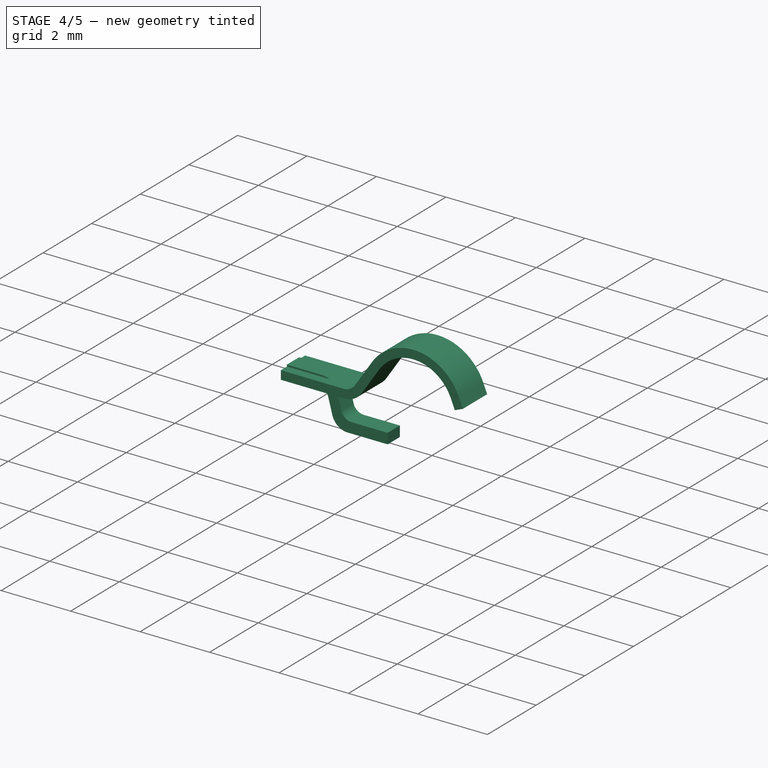
[diagram: stage 4 of 5 — iso view after this stage's code; geometry added in this stage tinted green]
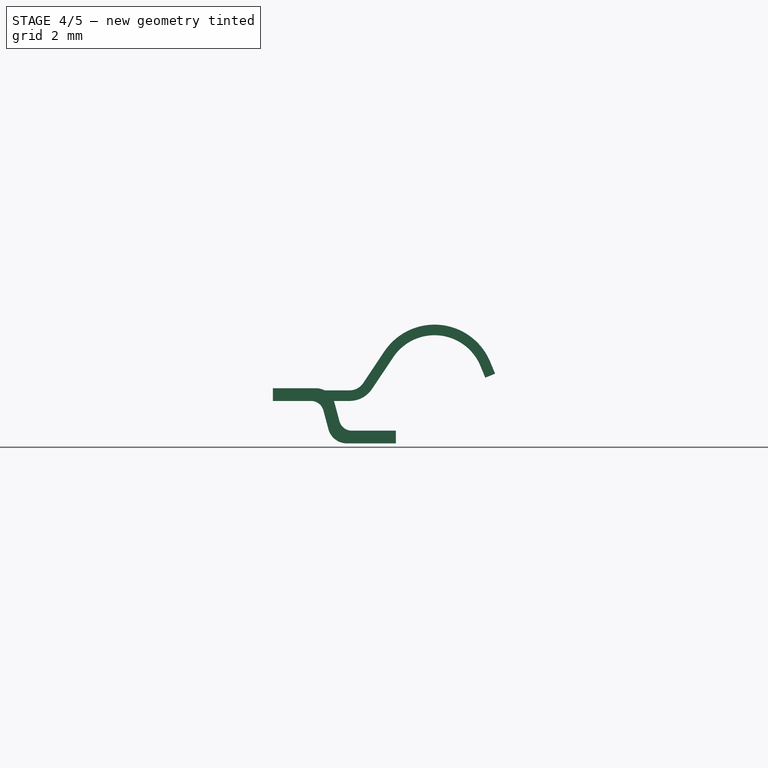
[diagram: stage 4 of 5 — front view after this stage's code; geometry added in this stage tinted green]
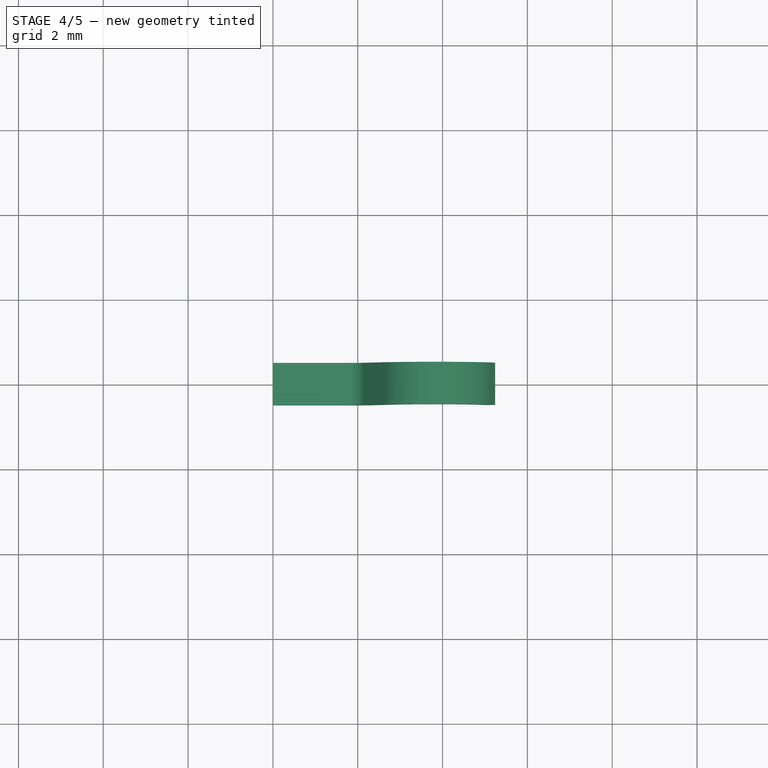
[diagram: stage 4 of 5 — top view after this stage's code; geometry added in this stage tinted green]
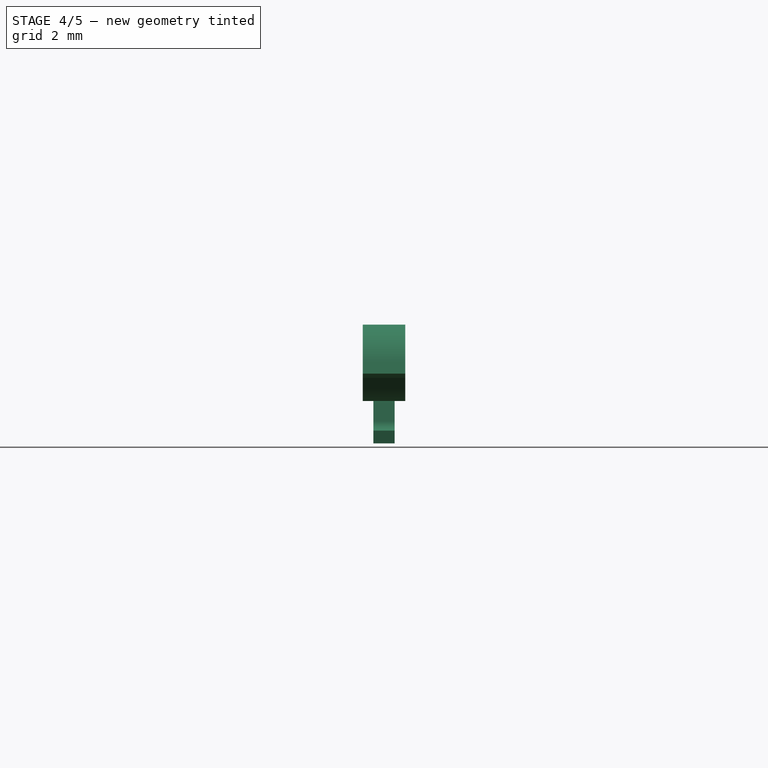
[diagram: stage 4 of 5 — right view after this stage's code; geometry added in this stage tinted green]
FEATURE [PartDesign::Body] Body  label="PlasticBlock_Body"
  Group = -> [Sketch,Pad,Sketch001,Pad001,Sketch002,Pocket,Chamfer]
  Origin = -> Origin
  Tip = -> Chamfer
FEATURE [Sketcher::SketchObject] Sketch019
  MapMode = 5
  Placement = pos=(0,0,0) rot=(1,0,0;1.5708rad)
  Support = -> [XZ_Plane014]
  sketch-geometry (13):
    g0: LineSegment StartX=0 StartY=1 StartZ=0 EndX=0.9 EndY=1 EndZ=0
    g1: LineSegment StartX=1.18978 StartY=0.777646 StartZ=0 EndX=1.30878 EndY=0.333531 EndZ=0
    g2: LineSegment StartX=1.74344 StartY=0 StartZ=0 EndX=2.9 EndY=0 EndZ=0
    g3: LineSegment StartX=2.9 StartY=0 StartZ=0 EndX=2.9 EndY=0.3 EndZ=0
    g4: LineSegment StartX=2.9 StartY=0.3 StartZ=0 EndX=1.85854 EndY=0.3 EndZ=0
    g5: LineSegment StartX=1.56877 StartY=0.522354 StartZ=0 EndX=1.44977 EndY=0.966469 EndZ=0
    g6: LineSegment StartX=1.0151 StartY=1.3 StartZ=0 EndX=0 EndY=1.3 EndZ=0
    g7: LineSegment StartX=0 StartY=1.3 StartZ=0 EndX=0 EndY=1 EndZ=0
    g8: ArcOfCircle CenterX=1.74344 CenterY=0.45 CenterZ=0 NormalX=0 NormalY=0 NormalZ=1 AngleXU=0 Radius=0.45 StartAngle=3.40339 EndAngle=4.71239
    g9: ArcOfCircle CenterX=0.9 CenterY=0.7 CenterZ=0 NormalX=0 NormalY=0 NormalZ=1 AngleXU=0 Radius=0.3 StartAngle=0.261799 EndAngle=1.5708
    g10: ArcOfCircle CenterX=1.0151 CenterY=0.85 CenterZ=0 NormalX=0 NormalY=0 NormalZ=1 AngleXU=0 Radius=0.45 StartAngle=0.261799 EndAngle=1.5708
    g11: ArcOfCircle CenterX=1.85854 CenterY=0.6 CenterZ=0 NormalX=0 NormalY=0 NormalZ=1 AngleXU=0 Radius=0.3 StartAngle=3.40339 EndAngle=4.71239
    g12: LineSegment [constr] StartX=1.25062 StartY=0.550567 StartZ=0 EndX=1.5404 EndY=0.628213 EndZ=0
  constraints (35):
    c: Horizontal(g0)
    c: PointOnObject(g2,g-1)
    c: Horizontal(g2)
    c: Coincident(g2,g3)
    c: Vertical(g3)
    c: Coincident(g3,g4)
    c: Horizontal(g4)
    c: PointOnObject(g6,g-2)
    c: Horizontal(g6)
    c: Coincident(g6,g7)
    c: Coincident(g0,g7)
    c: Vertical(g7)
    c: Parallel(g1,g5)
    c: Tangent(g1,g8) = -1.5708
    c: Tangent(g2,g8) = -1.5708
    c: Tangent(g0,g9) = 1.5708
    c: Tangent(g1,g9) = 1.5708
    c: Tangent(g5,g10) = -1.5708
    c: Tangent(g6,g10) = -1.5708
    c: Tangent(g4,g11) = 1.5708
    c: Tangent(g5,g11) = 1.5708
    c: DistanceY(g3,g3) = 0.3
    c: DistanceY(g7,g7) = 0.3
    c: DistanceX(g0,g0) = 0.9
    c: DistanceY(g-1,g0) = 1
    c: DistanceX(g-1,g2) = 2.9
    c: Equal(g9,g11)
    c: Equal(g10,g8)
    c: PointOnObject(g12,g5)
    c: Perpendicular(g12,g1)
    c: Distance(g12) = 0.3
    c: Angle(g1,g-1) = 1.309
    c: Radius(g8) = 0.45
    c: Radius(g9) = 0.3
    c: PointOnObject(g12,g1)
FEATURE [PartDesign::Pad] Pad018  label="Pin_Pad"
  Length = 0.5
  Length2 = 100
  Midplane = true
  Placement = pos=(0,0,0) rot=(1,0,0;1.5708rad)
  Profile = -> Sketch019
  Type = 0
FEATURE [PartDesign::Body] Body017  label="Pin1"
  Group = -> [Sketch019,Pad018]
  Origin = -> Origin014
  Placement = pos=(7.5,-5.42,0) rot=(0,0,1;0rad)
  Tip = -> Pad018
FEATURE [Sketcher::SketchObject] Sketch020
  MapMode = 5
  Placement = pos=(0,0,0) rot=(1,0,0;1.5708rad)
  Support = -> [XZ_Plane015]
  sketch-geometry (13):
    g0: LineSegment StartX=0 StartY=1 StartZ=0 EndX=0.9 EndY=1 EndZ=0
    g1: LineSegment StartX=1.18978 StartY=0.777646 StartZ=0 EndX=1.30878 EndY=0.333531 EndZ=0
    g2: LineSegment StartX=1.74344 StartY=0 StartZ=0 EndX=2.9 EndY=0 EndZ=0
    g3: LineSegment StartX=2.9 StartY=0 StartZ=0 EndX=2.9 EndY=0.3 EndZ=0
    g4: LineSegment StartX=2.9 StartY=0.3 StartZ=0 EndX=1.85854 EndY=0.3 EndZ=0
    g5: LineSegment StartX=1.56877 StartY=0.522354 StartZ=0 EndX=1.44977 EndY=0.966469 EndZ=0
    g6: LineSegment StartX=1.0151 StartY=1.3 StartZ=0 EndX=0 EndY=1.3 EndZ=0
    g7: LineSegment StartX=0 StartY=1.3 StartZ=0 EndX=0 EndY=1 EndZ=0
    g8: ArcOfCircle CenterX=1.74344 CenterY=0.45 CenterZ=0 NormalX=0 NormalY=0 NormalZ=1 AngleXU=0 Radius=0.45 StartAngle=3.40339 EndAngle=4.71239
    g9: ArcOfCircle CenterX=0.9 CenterY=0.7 CenterZ=0 NormalX=0 NormalY=0 NormalZ=1 AngleXU=0 Radius=0.3 StartAngle=0.261799 EndAngle=1.5708
    g10: ArcOfCircle CenterX=1.0151 CenterY=0.85 CenterZ=0 NormalX=0 NormalY=0 NormalZ=1 AngleXU=0 Radius=0.45 StartAngle=0.261799 EndAngle=1.5708
    g11: ArcOfCircle CenterX=1.85854 CenterY=0.6 CenterZ=0 NormalX=0 NormalY=0 NormalZ=1 AngleXU=0 Radius=0.3 StartAngle=3.40339 EndAngle=4.71239
    g12: LineSegment [constr] StartX=1.25062 StartY=0.550567 StartZ=0 EndX=1.5404 EndY=0.628213 EndZ=0
  constraints (35):
    c: Horizontal(g0)
    c: PointOnObject(g2,g-1)
    c: Horizontal(g2)
    c: Coincident(g2,g3)
    c: Vertical(g3)
    c: Coincident(g3,g4)
    c: Horizontal(g4)
    c: PointOnObject(g6,g-2)
    c: Horizontal(g6)
    c: Coincident(g6,g7)
    c: Coincident(g0,g7)
    c: Vertical(g7)
    c: Parallel(g1,g5)
    c: Tangent(g1,g8) = -1.5708
    c: Tangent(g2,g8) = -1.5708
    c: Tangent(g0,g9) = 1.5708
    c: Tangent(g1,g9) = 1.5708
    c: Tangent(g5,g10) = -1.5708
    c: Tangent(g6,g10) = -1.5708
    c: Tangent(g4,g11) = 1.5708
    c: Tangent(g5,g11) = 1.5708
    c: DistanceY(g3,g3) = 0.3
    c: DistanceY(g7,g7) = 0.3
    c: DistanceX(g0,g0) = 0.9
    c: DistanceY(g-1,g0) = 1
    c: DistanceX(g-1,g2) = 2.9
    c: Equal(g9,g11)
    c: Equal(g10,g8)
    c: PointOnObject(g12,g5)
    c: Perpendicular(g12,g1)
    c: Distance(g12) = 0.3
    c: Angle(g1,g-1) = 1.309
    c: Radius(g8) = 0.45
    c: Radius(g9) = 0.3
    c: PointOnObject(g12,g1)
FEATURE [PartDesign::Pad] Pad019  label="Pin_Pad001"
  Length = 0.5
  Length2 = 100
  Midplane = true
  Placement = pos=(0,0,0) rot=(1,0,0;1.5708rad)
  Profile = -> Sketch020
  Type = 0
FEATURE [PartDesign::Body] Body018  label="Pin2"
  Group = -> [Sketch020,Pad019]
  Origin = -> Origin015
  Placement = pos=(7.5,-2.88,0) rot=(0,0,1;0rad)
  Tip = -> Pad019
FEATURE [Sketcher::SketchObject] Sketch021
  MapMode = 5
  Placement = pos=(0,0,0) rot=(1,0,0;1.5708rad)
  Support = -> [XZ_Plane016]
  sketch-geometry (13):
    g0: LineSegment StartX=0 StartY=1 StartZ=0 EndX=0.9 EndY=1 EndZ=0
    g1: LineSegment StartX=1.18978 StartY=0.777646 StartZ=0 EndX=1.30878 EndY=0.333531 EndZ=0
    g2: LineSegment StartX=1.74344 StartY=0 StartZ=0 EndX=2.9 EndY=0 EndZ=0
    g3: LineSegment StartX=2.9 StartY=0 StartZ=0 EndX=2.9 EndY=0.3 EndZ=0
    g4: LineSegment StartX=2.9 StartY=0.3 StartZ=0 EndX=1.85854 EndY=0.3 EndZ=0
    g5: LineSegment StartX=1.56877 StartY=0.522354 StartZ=0 EndX=1.44977 EndY=0.966469 EndZ=0
    g6: LineSegment StartX=1.0151 StartY=1.3 StartZ=0 EndX=0 EndY=1.3 EndZ=0
    g7: LineSegment StartX=0 StartY=1.3 StartZ=0 EndX=0 EndY=1 EndZ=0
    g8: ArcOfCircle CenterX=1.74344 CenterY=0.45 CenterZ=0 NormalX=0 NormalY=0 NormalZ=1 AngleXU=0 Radius=0.45 StartAngle=3.40339 EndAngle=4.71239
    g9: ArcOfCircle CenterX=0.9 CenterY=0.7 CenterZ=0 NormalX=0 NormalY=0 NormalZ=1 AngleXU=0 Radius=0.3 StartAngle=0.261799 EndAngle=1.5708
    g10: ArcOfCircle CenterX=1.0151 CenterY=0.85 CenterZ=0 NormalX=0 NormalY=0 NormalZ=1 AngleXU=0 Radius=0.45 StartAngle=0.261799 EndAngle=1.5708
    g11: ArcOfCircle CenterX=1.85854 CenterY=0.6 CenterZ=0 NormalX=0 NormalY=0 NormalZ=1 AngleXU=0 Radius=0.3 StartAngle=3.40339 EndAngle=4.71239
    g12: LineSegment [constr] StartX=1.25062 StartY=0.550567 StartZ=0 EndX=1.5404 EndY=0.628213 EndZ=0
  constraints (35):
    c: Horizontal(g0)
    c: PointOnObject(g2,g-1)
    c: Horizontal(g2)
    c: Coincident(g2,g3)
    c: Vertical(g3)
    c: Coincident(g3,g4)
    c: Horizontal(g4)
    c: PointOnObject(g6,g-2)
    c: Horizontal(g6)
    c: Coincident(g6,g7)
    c: Coincident(g0,g7)
    c: Vertical(g7)
    c: Parallel(g1,g5)
    c: Tangent(g1,g8) = -1.5708
    c: Tangent(g2,g8) = -1.5708
    c: Tangent(g0,g9) = 1.5708
    c: Tangent(g1,g9) = 1.5708
    c: Tangent(g5,g10) = -1.5708
    c: Tangent(g6,g10) = -1.5708
    c: Tangent(g4,g11) = 1.5708
    c: Tangent(g5,g11) = 1.5708
    c: DistanceY(g3,g3) = 0.3
    c: DistanceY(g7,g7) = 0.3
    c: DistanceX(g0,g0) = 0.9
    c: DistanceY(g-1,g0) = 1
    c: DistanceX(g-1,g2) = 2.9
    c: Equal(g9,g11)
    c: Equal(g10,g8)
    c: PointOnObject(g12,g5)
    c: Perpendicular(g12,g1)
    c: Distance(g12) = 0.3
    c: Angle(g1,g-1) = 1.309
    c: Radius(g8) = 0.45
    c: Radius(g9) = 0.3
    c: PointOnObject(g12,g1)
FEATURE [PartDesign::Pad] Pad020  label="Pin_Pad002"
  Length = 0.5
  Length2 = 100
  Midplane = true
  Placement = pos=(0,0,0) rot=(1,0,0;1.5708rad)
  Profile = -> Sketch021
  Type = 0
FEATURE [PartDesign::Body] Body019  label="Pin3"
  Group = -> [Sketch021,Pad020]
  Origin = -> Origin016
  Placement = pos=(7.5,-0.34,0) rot=(0,0,1;0rad)
  Tip = -> Pad020
FEATURE [Sketcher::SketchObject] Sketch022
  MapMode = 5
  Placement = pos=(0,0,0) rot=(1,0,0;1.5708rad)
  Support = -> [XZ_Plane017]
  sketch-geometry (13):
    g0: LineSegment StartX=0 StartY=1 StartZ=0 EndX=0.9 EndY=1 EndZ=0
    g1: LineSegment StartX=1.18978 StartY=0.777646 StartZ=0 EndX=1.30878 EndY=0.333531 EndZ=0
    g2: LineSegment StartX=1.74344 StartY=0 StartZ=0 EndX=2.9 EndY=0 EndZ=0
    g3: LineSegment StartX=2.9 StartY=0 StartZ=0 EndX=2.9 EndY=0.3 EndZ=0
    g4: LineSegment StartX=2.9 StartY=0.3 StartZ=0 EndX=1.85854 EndY=0.3 EndZ=0
    g5: LineSegment StartX=1.56877 StartY=0.522354 StartZ=0 EndX=1.44977 EndY=0.966469 EndZ=0
    g6: LineSegment StartX=1.0151 StartY=1.3 StartZ=0 EndX=0 EndY=1.3 EndZ=0
    g7: LineSegment StartX=0 StartY=1.3 StartZ=0 EndX=0 EndY=1 EndZ=0
    g8: ArcOfCircle CenterX=1.74344 CenterY=0.45 CenterZ=0 NormalX=0 NormalY=0 NormalZ=1 AngleXU=0 Radius=0.45 StartAngle=3.40339 EndAngle=4.71239
    g9: ArcOfCircle CenterX=0.9 CenterY=0.7 CenterZ=0 NormalX=0 NormalY=0 NormalZ=1 AngleXU=0 Radius=0.3 StartAngle=0.261799 EndAngle=1.5708
    g10: ArcOfCircle CenterX=1.0151 CenterY=0.85 CenterZ=0 NormalX=0 NormalY=0 NormalZ=1 AngleXU=0 Radius=0.45 StartAngle=0.261799 EndAngle=1.5708
    g11: ArcOfCircle CenterX=1.85854 CenterY=0.6 CenterZ=0 NormalX=0 NormalY=0 NormalZ=1 AngleXU=0 Radius=0.3 StartAngle=3.40339 EndAngle=4.71239
    g12: LineSegment [constr] StartX=1.25062 StartY=0.550567 StartZ=0 EndX=1.5404 EndY=0.628213 EndZ=0
  constraints (35):
    c: Horizontal(g0)
    c: PointOnObject(g2,g-1)
    c: Horizontal(g2)
    c: Coincident(g2,g3)
    c: Vertical(g3)
    c: Coincident(g3,g4)
    c: Horizontal(g4)
    c: PointOnObject(g6,g-2)
    c: Horizontal(g6)
    c: Coincident(g6,g7)
    c: Coincident(g0,g7)
    c: Vertical(g7)
    c: Parallel(g1,g5)
    c: Tangent(g1,g8) = -1.5708
    c: Tangent(g2,g8) = -1.5708
    c: Tangent(g0,g9) = 1.5708
    c: Tangent(g1,g9) = 1.5708
    c: Tangent(g5,g10) = -1.5708
    c: Tangent(g6,g10) = -1.5708
    c: Tangent(g4,g11) = 1.5708
    c: Tangent(g5,g11) = 1.5708
    c: DistanceY(g3,g3) = 0.3
    c: DistanceY(g7,g7) = 0.3
    c: DistanceX(g0,g0) = 0.9
    c: DistanceY(g-1,g0) = 1
    c: DistanceX(g-1,g2) = 2.9
    c: Equal(g9,g11)
    c: Equal(g10,g8)
    c: PointOnObject(g12,g5)
    c: Perpendicular(g12,g1)
    c: Distance(g12) = 0.3
    c: Angle(g1,g-1) = 1.309
    c: Radius(g8) = 0.45
    c: Radius(g9) = 0.3
    c: PointOnObject(g12,g1)
FEATURE [PartDesign::Pad] Pad021  label="Pin_Pad003"
  Length = 0.5
  Length2 = 100
  Midplane = true
  Placement = pos=(0,0,0) rot=(1,0,0;1.5708rad)
  Profile = -> Sketch022
  Type = 0
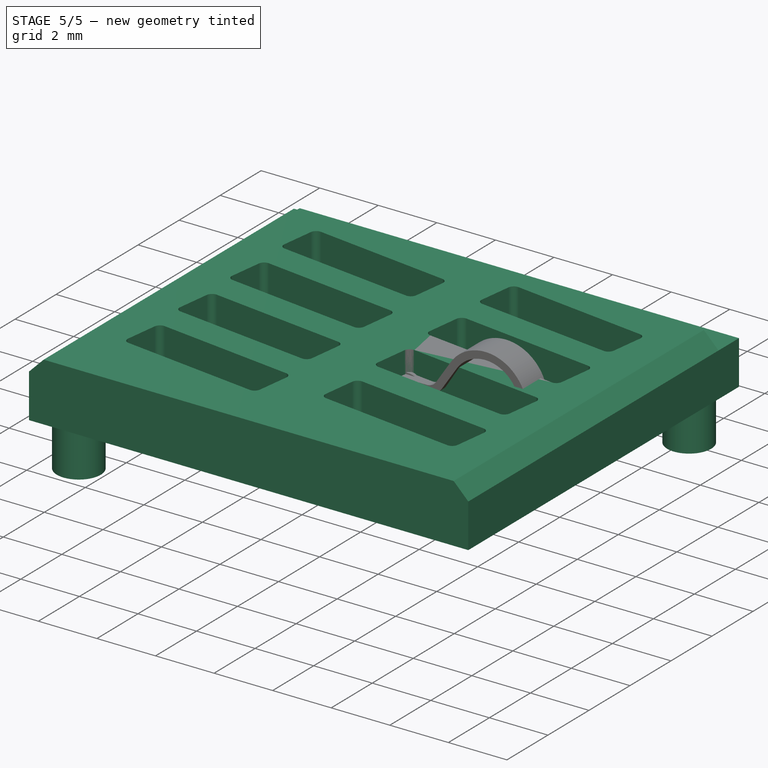
[diagram: stage 5 of 5 — iso view after this stage's code; geometry added in this stage tinted green]
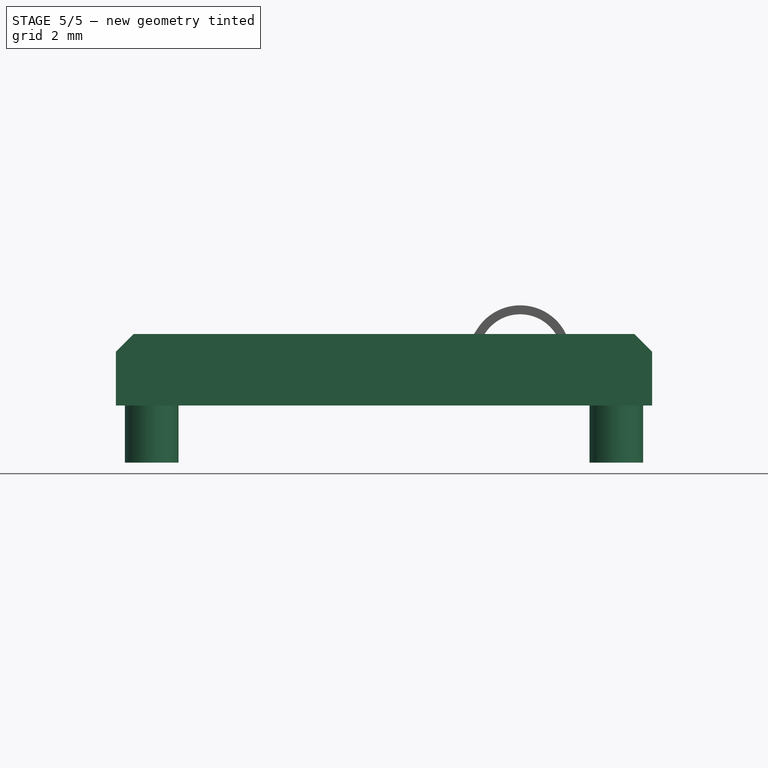
[diagram: stage 5 of 5 — front view after this stage's code; geometry added in this stage tinted green]
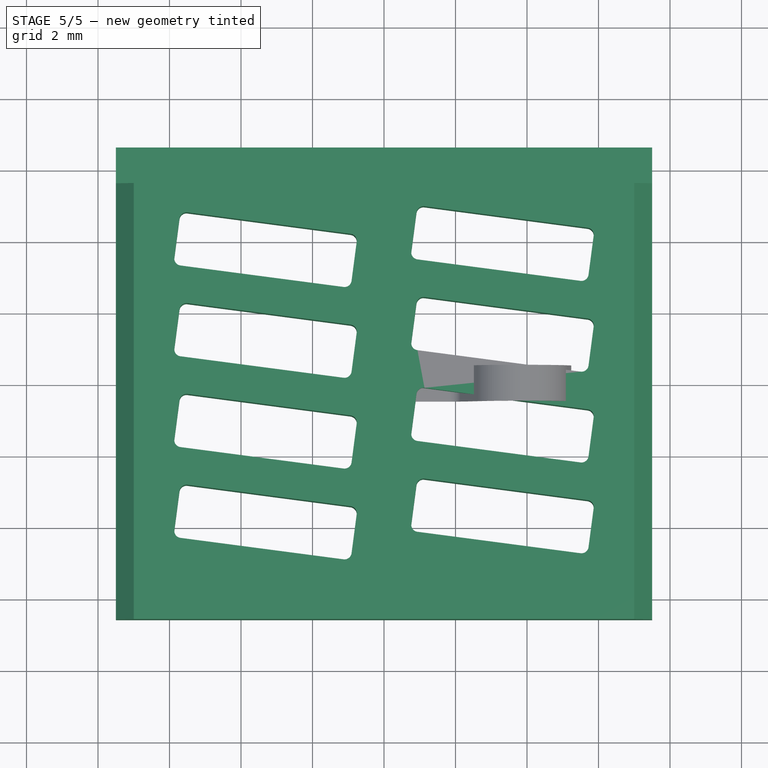
[diagram: stage 5 of 5 — top view after this stage's code; geometry added in this stage tinted green]
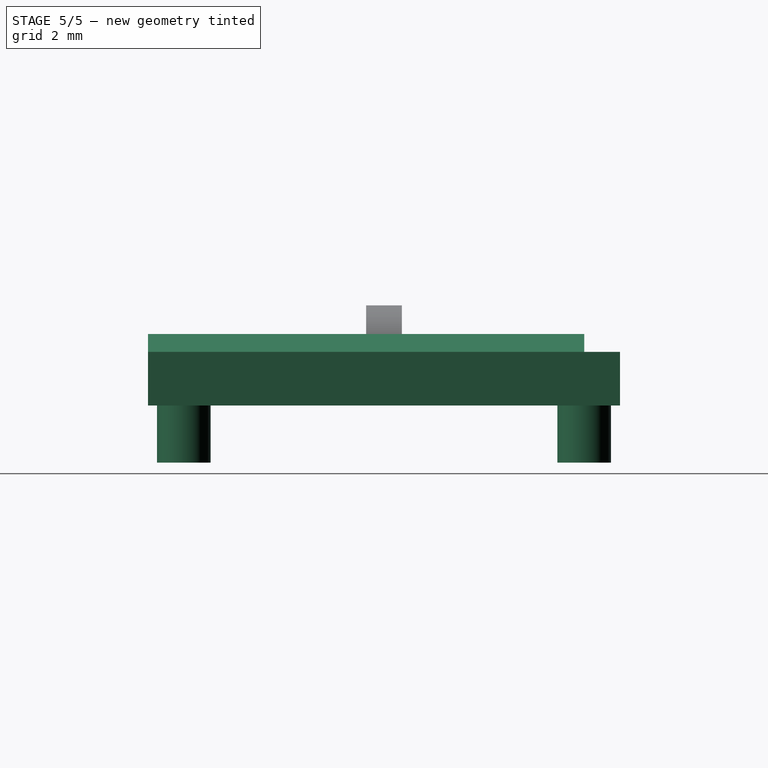
[diagram: stage 5 of 5 — right view after this stage's code; geometry added in this stage tinted green]
FEATURE [Sketcher::SketchObject] Sketch
  MapMode = 5
  Support = -> [XY_Plane]
  sketch-geometry (93):
    g0: LineSegment StartX=-7.5 StartY=6.6 StartZ=0 EndX=7.5 EndY=6.6 EndZ=0
    g1: LineSegment StartX=7.5 StartY=6.6 StartZ=0 EndX=7.5 EndY=-6.6 EndZ=0
    g2: LineSegment StartX=7.5 StartY=-6.6 StartZ=0 EndX=-7.5 EndY=-6.6 EndZ=0
    g3: LineSegment StartX=-7.5 StartY=-6.6 StartZ=0 EndX=-7.5 EndY=6.6 EndZ=0
    g4: LineSegment StartX=1.13185 StartY=-2.67094 StartZ=0 EndX=5.6925 EndY=-3.27136 EndZ=0
    g5: LineSegment StartX=5.86468 StartY=-3.49576 StartZ=0 EndX=5.7211 EndY=-4.58635 EndZ=0
    g6: LineSegment StartX=5.49671 StartY=-4.75853 StartZ=0 EndX=0.93606 EndY=-4.15811 EndZ=0
    g7: LineSegment StartX=0.763876 StartY=-3.93372 StartZ=0 EndX=0.907455 EndY=-2.84313 EndZ=0
    g8: LineSegment [constr] StartX=6.5 StartY=10 StartZ=0 EndX=6.5 EndY=-10 EndZ=0
    g9: LineSegment [constr] StartX=0.835665 StartY=-3.38842 StartZ=0 EndX=5.79289 EndY=-4.04105 EndZ=0
    g10: LineSegment [constr] StartX=3.71211 StartY=-4.52358 StartZ=0 EndX=3.90789 EndY=-3.03642 EndZ=0
    g11: GeomPoint X=3.81 Y=-3.78 Z=0
    g12: ArcOfCircle CenterX=1.10574 CenterY=-2.86923 CenterZ=0 NormalX=0 NormalY=0 NormalZ=1 AngleXU=0 Radius=0.2 StartAngle=1.4399 EndAngle=3.01069
    g13: ArcOfCircle CenterX=0.962165 CenterY=-3.95982 CenterZ=0 NormalX=0 NormalY=0 NormalZ=1 AngleXU=0 Radius=0.2 StartAngle=3.01069 EndAngle=4.58149
    g14: ArcOfCircle CenterX=5.52281 CenterY=-4.56024 CenterZ=0 NormalX=0 NormalY=0 NormalZ=1 AngleXU=0 Radius=0.2 StartAngle=4.58149 EndAngle=6.15229
    g15: ArcOfCircle CenterX=5.66639 CenterY=-3.46965 CenterZ=0 NormalX=0 NormalY=0 NormalZ=1 AngleXU=0 Radius=0.2 StartAngle=6.15229 EndAngle=7.72308
    g16: LineSegment StartX=1.13185 StartY=-0.130943 StartZ=0 EndX=5.6925 EndY=-0.731363 EndZ=0
    g17: LineSegment StartX=5.86468 StartY=-0.955758 StartZ=0 EndX=5.7211 EndY=-2.04635 EndZ=0
    g18: LineSegment StartX=5.49671 StartY=-2.21853 StartZ=0 EndX=0.93606 EndY=-1.61811 EndZ=0
    g19: LineSegment StartX=0.763876 StartY=-1.39372 StartZ=0 EndX=0.907455 EndY=-0.303127 EndZ=0
    g20: LineSegment [constr] StartX=0.835665 StartY=-0.848421 StartZ=0 EndX=5.79289 EndY=-1.50105 EndZ=0
    g21: LineSegment [constr] StartX=3.71211 StartY=-1.98358 StartZ=0 EndX=3.90789 EndY=-0.496416 EndZ=0
    g22: GeomPoint X=3.81 Y=-1.24 Z=0
    g23: ArcOfCircle CenterX=1.10574 CenterY=-0.329232 CenterZ=0 NormalX=0 NormalY=0 NormalZ=1 AngleXU=0 Radius=0.2 StartAngle=1.4399 EndAngle=3.01069
    g24: ArcOfCircle CenterX=0.962165 CenterY=-1.41982 CenterZ=0 NormalX=0 NormalY=0 NormalZ=1 AngleXU=0 Radius=0.2 StartAngle=3.01069 EndAngle=4.58149
    g25: ArcOfCircle CenterX=5.52281 CenterY=-2.02024 CenterZ=0 NormalX=0 NormalY=0 NormalZ=1 AngleXU=0 Radius=0.2 StartAngle=4.58149 EndAngle=6.15229
    g26: ArcOfCircle CenterX=5.66639 CenterY=-0.929652 CenterZ=0 NormalX=0 NormalY=0 NormalZ=1 AngleXU=0 Radius=0.2 StartAngle=6.15229 EndAngle=7.72308
    g27: LineSegment StartX=1.13185 StartY=2.40906 StartZ=0 EndX=5.6925 EndY=1.80864 EndZ=0
    g28: LineSegment StartX=5.86468 StartY=1.58424 StartZ=0 EndX=5.7211 EndY=0.493653 EndZ=0
    g29: LineSegment StartX=5.49671 StartY=0.321469 StartZ=0 EndX=0.93606 EndY=0.92189 EndZ=0
    g30: LineSegment StartX=0.763876 StartY=1.14628 StartZ=0 EndX=0.907455 EndY=2.23687 EndZ=0
    g31: LineSegment [constr] StartX=0.835665 StartY=1.69158 StartZ=0 EndX=5.79289 EndY=1.03895 EndZ=0
    g32: LineSegment [constr] StartX=3.71211 StartY=0.556416 StartZ=0 EndX=3.90789 EndY=2.04358 EndZ=0
    g33: GeomPoint X=3.81 Y=1.3 Z=0
    g34: ArcOfCircle CenterX=1.10574 CenterY=2.21077 CenterZ=0 NormalX=0 NormalY=0 NormalZ=1 AngleXU=0 Radius=0.2 StartAngle=1.4399 EndAngle=3.01069
    g35: ArcOfCircle CenterX=0.962165 CenterY=1.12018 CenterZ=0 NormalX=0 NormalY=0 NormalZ=1 AngleXU=0 Radius=0.2 StartAngle=3.01069 EndAngle=4.58149
    g36: ArcOfCircle CenterX=5.52281 CenterY=0.519758 CenterZ=0 NormalX=0 NormalY=0 NormalZ=1 AngleXU=0 Radius=0.2 StartAngle=4.58149 EndAngle=6.15229
    g37: ArcOfCircle CenterX=5.66639 CenterY=1.61035 CenterZ=0 NormalX=0 NormalY=0 NormalZ=1 AngleXU=0 Radius=0.2 StartAngle=6.15229 EndAngle=7.72308
    g38: LineSegment StartX=1.13185 StartY=4.94906 StartZ=0 EndX=5.6925 EndY=4.34864 EndZ=0
    g39: LineSegment StartX=5.86468 StartY=4.12424 StartZ=0 EndX=5.7211 EndY=3.03365 EndZ=0
    g40: LineSegment StartX=5.49671 StartY=2.86147 StartZ=0 EndX=0.93606 EndY=3.46189 EndZ=0
    g41: LineSegment StartX=0.763876 StartY=3.68628 StartZ=0 EndX=0.907455 EndY=4.77687 EndZ=0
    g42: LineSegment [constr] StartX=0.835665 StartY=4.23158 StartZ=0 EndX=5.79289 EndY=3.57895 EndZ=0
    g43: LineSegment [constr] StartX=3.71211 StartY=3.09642 StartZ=0 EndX=3.90789 EndY=4.58358 EndZ=0
    g44: GeomPoint X=3.81 Y=3.84 Z=0
    g45: ArcOfCircle CenterX=1.10574 CenterY=4.75077 CenterZ=0 NormalX=0 NormalY=0 NormalZ=1 AngleXU=0 Radius=0.2 StartAngle=1.4399 EndAngle=3.01069
    g46: ArcOfCircle CenterX=0.962165 CenterY=3.66018 CenterZ=0 NormalX=0 NormalY=0 NormalZ=1 AngleXU=0 Radius=0.2 StartAngle=3.01069 EndAngle=4.58149
    g47: ArcOfCircle CenterX=5.52281 CenterY=3.05976 CenterZ=0 NormalX=0 NormalY=0 NormalZ=1 AngleXU=0 Radius=0.2 StartAngle=4.58149 EndAngle=6.15229
    g48: ArcOfCircle CenterX=5.66639 CenterY=4.15035 CenterZ=0 NormalX=0 NormalY=0 NormalZ=1 AngleXU=0 Radius=0.2 StartAngle=6.15229 EndAngle=7.72308
    g49: LineSegment StartX=-5.49671 StartY=-2.84147 StartZ=0 EndX=-0.93606 EndY=-3.44189 EndZ=0
    g50: LineSegment StartX=-0.763876 StartY=-3.66628 StartZ=0 EndX=-0.907455 EndY=-4.75687 EndZ=0
    g51: LineSegment StartX=-1.13185 StartY=-4.92906 StartZ=0 EndX=-5.6925 EndY=-4.32864 EndZ=0
    g52: LineSegment StartX=-5.86468 StartY=-4.10424 StartZ=0 EndX=-5.7211 EndY=-3.01365 EndZ=0
    g53: LineSegment [constr] StartX=-5.79289 StartY=-3.55895 StartZ=0 EndX=-0.835665 EndY=-4.21158 EndZ=0
    g54: LineSegment [constr] StartX=-3.90789 StartY=-4.56358 StartZ=0 EndX=-3.71211 EndY=-3.07642 EndZ=0
    g55: GeomPoint X=-3.81 Y=-3.82 Z=0
    g56: ArcOfCircle CenterX=-5.52281 CenterY=-3.03976 CenterZ=0 NormalX=0 NormalY=0 NormalZ=1 AngleXU=0 Radius=0.2 StartAngle=1.4399 EndAngle=3.01069
    g57: ArcOfCircle CenterX=-5.66639 CenterY=-4.13035 CenterZ=0 NormalX=0 NormalY=0 NormalZ=1 AngleXU=0 Radius=0.2 StartAngle=3.01069 EndAngle=4.58149
    g58: ArcOfCircle CenterX=-1.10574 CenterY=-4.73077 CenterZ=0 NormalX=0 NormalY=0 NormalZ=1 AngleXU=0 Radius=0.2 StartAngle=4.58149 EndAngle=6.15229
    g59: ArcOfCircle CenterX=-0.962165 CenterY=-3.64018 CenterZ=0 NormalX=0 NormalY=0 NormalZ=1 AngleXU=0 Radius=0.2 StartAngle=6.15229 EndAngle=7.72308
    g60: LineSegment StartX=-5.49671 StartY=-0.301469 StartZ=0 EndX=-0.93606 EndY=-0.90189 EndZ=0
    g61: LineSegment StartX=-0.763876 StartY=-1.12628 StartZ=0 EndX=-0.907455 EndY=-2.21687 EndZ=0
    g62: LineSegment StartX=-1.13185 StartY=-2.38906 StartZ=0 EndX=-5.6925 EndY=-1.78864 EndZ=0
    g63: LineSegment StartX=-5.86468 StartY=-1.56424 StartZ=0 EndX=-5.7211 EndY=-0.473653 EndZ=0
    g64: LineSegment [constr] StartX=-5.79289 StartY=-1.01895 StartZ=0 EndX=-0.835665 EndY=-1.67158 EndZ=0
    g65: LineSegment [constr] StartX=-3.90789 StartY=-2.02358 StartZ=0 EndX=-3.71211 EndY=-0.536416 EndZ=0
    g66: GeomPoint X=-3.81 Y=-1.28 Z=0
    g67: ArcOfCircle CenterX=-5.52281 CenterY=-0.499758 CenterZ=0 NormalX=0 NormalY=0 NormalZ=1 AngleXU=0 Radius=0.2 StartAngle=1.4399 EndAngle=3.01069
    g68: ArcOfCircle CenterX=-5.66639 CenterY=-1.59035 CenterZ=0 NormalX=0 NormalY=0 NormalZ=1 AngleXU=0 Radius=0.2 StartAngle=3.01069 EndAngle=4.58149
    g69: ArcOfCircle CenterX=-1.10574 CenterY=-2.19077 CenterZ=0 NormalX=0 NormalY=0 NormalZ=1 AngleXU=0 Radius=0.2 StartAngle=4.58149 EndAngle=6.15229
    g70: ArcOfCircle CenterX=-0.962165 CenterY=-1.10018 CenterZ=0 NormalX=0 NormalY=0 NormalZ=1 AngleXU=0 Radius=0.2 StartAngle=6.15229 EndAngle=7.72308
    g71: LineSegment StartX=-5.49671 StartY=2.23853 StartZ=0 EndX=-0.93606 EndY=1.63811 EndZ=0
    g72: LineSegment StartX=-0.763876 StartY=1.41372 StartZ=0 EndX=-0.907455 EndY=0.323127 EndZ=0
    g73: LineSegment StartX=-1.13185 StartY=0.150943 StartZ=0 EndX=-5.6925 EndY=0.751363 EndZ=0
    g74: LineSegment StartX=-5.86468 StartY=0.975758 StartZ=0 EndX=-5.7211 EndY=2.06635 EndZ=0
    g75: LineSegment [constr] StartX=-5.79289 StartY=1.52105 StartZ=0 EndX=-0.835665 EndY=0.868421 EndZ=0
    g76: LineSegment [constr] StartX=-3.90789 StartY=0.516416 StartZ=0 EndX=-3.71211 EndY=2.00358 EndZ=0
    g77: GeomPoint X=-3.81 Y=1.26 Z=0
    g78: ArcOfCircle CenterX=-5.52281 CenterY=2.04024 CenterZ=0 NormalX=0 NormalY=0 NormalZ=1 AngleXU=0 Radius=0.2 StartAngle=1.4399 EndAngle=3.01069
    g79: ArcOfCircle CenterX=-5.66639 CenterY=0.949652 CenterZ=0 NormalX=0 NormalY=0 NormalZ=1 AngleXU=0 Radius=0.2 StartAngle=3.01069 EndAngle=4.58149
    g80: ArcOfCircle CenterX=-1.10574 CenterY=0.349232 CenterZ=0 NormalX=0 NormalY=0 NormalZ=1 AngleXU=0 Radius=0.2 StartAngle=4.58149 EndAngle=6.15229
    g81: ArcOfCircle CenterX=-0.962165 CenterY=1.43982 CenterZ=0 NormalX=0 NormalY=0 NormalZ=1 AngleXU=0 Radius=0.2 StartAngle=6.15229 EndAngle=7.72308
    g82: LineSegment StartX=-5.49671 StartY=4.77853 StartZ=0 EndX=-0.93606 EndY=4.17811 EndZ=0
    g83: LineSegment StartX=-0.763876 StartY=3.95372 StartZ=0 EndX=-0.907455 EndY=2.86313 EndZ=0
    g84: LineSegment StartX=-1.13185 StartY=2.69094 StartZ=0 EndX=-5.6925 EndY=3.29136 EndZ=0
    g85: LineSegment StartX=-5.86468 StartY=3.51576 StartZ=0 EndX=-5.7211 EndY=4.60635 EndZ=0
    g86: LineSegment [constr] StartX=-5.79289 StartY=4.06105 StartZ=0 EndX=-0.835665 EndY=3.40842 EndZ=0
    g87: LineSegment [constr] StartX=-3.90789 StartY=3.05642 StartZ=0 EndX=-3.71211 EndY=4.54358 EndZ=0
    g88: GeomPoint X=-3.81 Y=3.8 Z=0
    g89: ArcOfCircle CenterX=-5.52281 CenterY=4.58024 CenterZ=0 NormalX=0 NormalY=0 NormalZ=1 AngleXU=0 Radius=0.2 StartAngle=1.4399 EndAngle=3.01069
    g90: ArcOfCircle CenterX=-5.66639 CenterY=3.48965 CenterZ=0 NormalX=0 NormalY=0 NormalZ=1 AngleXU=0 Radius=0.2 StartAngle=3.01069 EndAngle=4.58149
    g91: ArcOfCircle CenterX=-1.10574 CenterY=2.88923 CenterZ=0 NormalX=0 NormalY=0 NormalZ=1 AngleXU=0 Radius=0.2 StartAngle=4.58149 EndAngle=6.15229
    g92: ArcOfCircle CenterX=-0.962165 CenterY=3.97982 CenterZ=0 NormalX=0 NormalY=0 NormalZ=1 AngleXU=0 Radius=0.2 StartAngle=6.15229 EndAngle=7.72308
  constraints (247):
    c: Coincident(g0,g1)
    c: Coincident(g1,g2)
    c: Coincident(g2,g3)
    c: Coincident(g3,g0)
    c: Horizontal(g2)
    c: Vertical(g3)
    c: Symmetric(g0,g0,g-2)
    c: Symmetric(g0,g1,g-1)
    c: DistanceX(g0,g0) = 15
    c: DistanceY(g1,g1) = 13.2
    c: Parallel(g4,g6)
    c: Parallel(g7,g5)
    c: Perpendicular(g5,g4)
    c: Symmetric(g8,g8,g-1)
    c: DistanceX(g-1,g8) = 6.5
    c: DistanceY(g8,g8) = 20
    c: Angle(g4,g-1) = 0.1309
    c: PointOnObject(g9,g7)
    c: PointOnObject(g9,g5)
    c: Distance(g9) = 5
    c: PointOnObject(g10,g6)
    c: PointOnObject(g10,g4)
    c: Perpendicular(g9,g10)
    c: Distance(g10) = 1.5
    c: PointOnObject(g11,g9)
    c: Distance(g11,g9) = 3
    c: DistanceX(g-1,g11) = 3.81
    c: Tangent(g7,g12) = 1.5708
    c: Tangent(g4,g12) = 1.5708
    c: Tangent(g7,g13) = 1.5708
    c: Tangent(g6,g13) = 1.5708
    c: Tangent(g6,g14) = 1.5708
    c: Tangent(g5,g14) = 1.5708
    c: Tangent(g4,g15) = 1.5708
    c: Tangent(g5,g15) = 1.5708
    c: Equal(g12,g13)
    c: Equal(g13,g14)
    c: Equal(g14,g15)
    c: Radius(g15) = 0.2
    c: Symmetric(g10,g10,g11)
    c: Parallel(g9,g4)
    c: DistanceY(g11,g0) = 10.38
    c: Parallel(g16,g18)
    c: Parallel(g19,g17)
    c: Perpendicular(g17,g16)
    c: PointOnObject(g20,g19)
    c: PointOnObject(g20,g17)
    c: Equal(g9,g20) = 5
    c: PointOnObject(g21,g18)
    c: PointOnObject(g21,g16)
    c: Perpendicular(g20,g21)
    c: Equal(g10,g21) = 1.5
    c: PointOnObject(g22,g20)
    c: Distance(g22,g20) = 3
    c: Tangent(g19,g23) = 1.5708
    c: Tangent(g16,g23) = 1.5708
    c: Tangent(g19,g24) = 1.5708
    c: Tangent(g18,g24) = 1.5708
    c: Tangent(g18,g25) = 1.5708
    c: Tangent(g17,g25) = 1.5708
    c: Tangent(g16,g26) = 1.5708
    c: Tangent(g17,g26) = 1.5708
    c: Equal(g23,g24)
    c: Equal(g24,g25)
    c: Equal(g25,g26)
    c: Equal(g15,g26) = 0.2
    c: Symmetric(g21,g21,g22)
    c: Parallel(g20,g16)
    c: Parallel(g27,g29)
    c: Parallel(g30,g28)
    c: Perpendicular(g28,g27)
    c: PointOnObject(g31,g30)
    c: PointOnObject(g31,g28)
    c: Equal(g9,g31) = 5
    c: PointOnObject(g32,g29)
    c: PointOnObject(g32,g27)
    c: Perpendicular(g31,g32)
    c: Equal(g10,g32) = 1.5
    c: PointOnObject(g33,g31)
    c: Distance(g33,g31) = 3
    c: Tangent(g30,g34) = 1.5708
    c: Tangent(g27,g34) = 1.5708
    c: Tangent(g30,g35) = 1.5708
    c: Tangent(g29,g35) = 1.5708
    c: Tangent(g29,g36) = 1.5708
    c: Tangent(g28,g36) = 1.5708
    c: Tangent(g27,g37) = 1.5708
    c: Tangent(g28,g37) = 1.5708
    c: Equal(g34,g35)
    c: Equal(g35,g36)
    c: Equal(g36,g37)
    c: Equal(g15,g37) = 0.2
    c: Symmetric(g32,g32,g33)
    c: Parallel(g31,g27)
    c: Parallel(g38,g40)
    c: Parallel(g41,g39)
    c: Perpendicular(g39,g38)
    c: PointOnObject(g42,g41)
    c: PointOnObject(g42,g39)
    c: Equal(g9,g42) = 5
    c: PointOnObject(g43,g40)
    c: PointOnObject(g43,g38)
    c: Perpendicular(g42,g43)
    c: Equal(g10,g43) = 1.5
    c: PointOnObject(g44,g42)
    c: Distance(g44,g42) = 3
    c: Tangent(g41,g45) = 1.5708
    c: Tangent(g38,g45) = 1.5708
    c: Tangent(g41,g46) = 1.5708
    c: Tangent(g40,g46) = 1.5708
    c: Tangent(g40,g47) = 1.5708
    c: Tangent(g39,g47) = 1.5708
    c: Tangent(g38,g48) = 1.5708
    c: Tangent(g39,g48) = 1.5708
    c: Equal(g45,g46)
    c: Equal(g46,g47)
    c: Equal(g47,g48)
    c: Equal(g15,g48) = 0.2
    c: Symmetric(g43,g43,g44)
    c: Parallel(g42,g38)
    c: Parallel(g9,g20)
    c: Parallel(g20,g31)
    c: Parallel(g31,g42)
    c: Vertical(g11,g22)
    c: Vertical(g22,g33)
    c: Vertical(g33,g44)
    c: DistanceY(g10,g21) = 2.54
    c: DistanceY(g21,g32) = 2.54
    c: DistanceY(g32,g43) = 2.54
    c: Parallel(g49,g51)
    c: Parallel(g52,g50)
    c: Perpendicular(g50,g49)
    c: PointOnObject(g53,g52)
    c: PointOnObject(g53,g50)
    c: Equal(g9,g53) = 5
    c: PointOnObject(g54,g51)
    c: PointOnObject(g54,g49)
    c: Perpendicular(g53,g54)
    c: Equal(g10,g54) = 1.5
    c: PointOnObject(g55,g53)
    c: Tangent(g52,g56) = 1.5708
    c: Tangent(g49,g56) = 1.5708
    c: Tangent(g52,g57) = 1.5708
    c: Tangent(g51,g57) = 1.5708
    c: Tangent(g51,g58) = 1.5708
    c: Tangent(g50,g58) = 1.5708
    c: Tangent(g49,g59) = 1.5708
    c: Tangent(g50,g59) = 1.5708
    c: Equal(g56,g57)
    c: Equal(g57,g58)
    c: Equal(g58,g59)
    c: Equal(g15,g59) = 0.2
    c: Symmetric(g54,g54,g55)
    c: Parallel(g53,g49)
    c: Parallel(g53,g9)
    c: DistanceX(g55,g-1) = 3.81
    c: DistanceY(g55,g0) = 10.42
    c: Parallel(g60,g62)
    c: Parallel(g63,g61)
    c: Perpendicular(g61,g60)
    c: PointOnObject(g64,g63)
    c: PointOnObject(g64,g61)
    c: PointOnObject(g65,g62)
    c: PointOnObject(g65,g60)
    c: Perpendicular(g64,g65)
    c: PointOnObject(g66,g64)
    c: Tangent(g63,g67) = 1.5708
    c: Tangent(g60,g67) = 1.5708
    c: Tangent(g63,g68) = 1.5708
    c: Tangent(g62,g68) = 1.5708
    c: Tangent(g62,g69) = 1.5708
    c: Tangent(g61,g69) = 1.5708
    c: Tangent(g60,g70) = 1.5708
    c: Tangent(g61,g70) = 1.5708
    c: Equal(g67,g68)
    c: Equal(g68,g69)
    c: Symmetric(g65,g65,g66)
    c: Parallel(g64,g60)
    c: Parallel(g71,g73)
    c: Parallel(g74,g72)
    c: Perpendicular(g72,g71)
    c: PointOnObject(g75,g74)
    c: PointOnObject(g75,g72)
    c: PointOnObject(g76,g73)
    c: PointOnObject(g76,g71)
    c: Perpendicular(g75,g76)
    c: PointOnObject(g77,g75)
    c: Tangent(g74,g78) = 1.5708
    c: Tangent(g71,g78) = 1.5708
    c: Tangent(g74,g79) = 1.5708
    c: Tangent(g73,g79) = 1.5708
    c: Tangent(g73,g80) = 1.5708
    c: Tangent(g72,g80) = 1.5708
    c: Tangent(g71,g81) = 1.5708
    c: Tangent(g72,g81) = 1.5708
    c: Equal(g78,g79)
    c: Equal(g79,g80)
    c: Symmetric(g76,g76,g77)
    c: Parallel(g75,g71)
    c: Parallel(g82,g84)
    c: Parallel(g85,g83)
    c: Perpendicular(g83,g82)
    c: PointOnObject(g86,g85)
    c: PointOnObject(g86,g83)
    c: PointOnObject(g87,g84)
    c: PointOnObject(g87,g82)
    c: Perpendicular(g86,g87)
    c: PointOnObject(g88,g86)
    c: Tangent(g85,g89) = 1.5708
    c: Tangent(g82,g89) = 1.5708
    c: Tangent(g85,g90) = 1.5708
    c: Tangent(g84,g90) = 1.5708
    c: Tangent(g84,g91) = 1.5708
    c: Tangent(g83,g91) = 1.5708
    c: Tangent(g82,g92) = 1.5708
    c: Tangent(g83,g92) = 1.5708
    c: Equal(g89,g90)
    c: Equal(g90,g91)
    c: Symmetric(g87,g87,g88)
    c: Parallel(g86,g82)
    c: Parallel(g53,g64)
    c: Parallel(g64,g75)
    c: Parallel(g75,g86)
    c: Vertical(g88,g77)
    c: Vertical(g77,g66)
    c: Vertical(g66,g55)
    c: Equal(g54,g65)
    c: Equal(g65,g76)
    c: Equal(g76,g87)
    c: Equal(g86,g75)
    c: Equal(g75,g64)
    c: Equal(g64,g53)
    c: DistanceY(g54,g65) = 2.54
    c: DistanceY(g65,g76) = 2.54
    c: DistanceY(g76,g87) = 2.54
    c: Equal(g71,g73)
    c: Equal(g62,g60)
    c: Equal(g60,g73)
    c: Equal(g73,g71)
    c: Equal(g71,g84)
    c: Equal(g84,g82)
    c: Equal(g61,g72)
    c: Equal(g50,g61)
    c: Distance(g66,g64) = 3
    c: Distance(g55,g53) = 3
    c: Distance(g77,g75) = 3
    c: Distance(g88,g86) = 3
FEATURE [PartDesign::Pad] Pad
  Length = 2
  Length2 = 100
  Profile = -> Sketch
  Type = 0
FEATURE [Sketcher::SketchObject] Sketch001
  MapMode = 5
  Placement = pos=(0,0,0) rot=(1,0,0;3.14159rad)
  Support = -> [Pad]
  sketch-geometry (2):
    g0: Circle CenterX=6.5 CenterY=-5.6 CenterZ=0 NormalX=0 NormalY=0 NormalZ=1 AngleXU=0 Radius=0.75
    g1: Circle CenterX=-6.5 CenterY=5.6 CenterZ=0 NormalX=0 NormalY=0 NormalZ=1 AngleXU=0 Radius=0.75
  constraints (5):
    c: Equal(g0,g1)
    c: Diameter(g0) = 1.5
    c: DistanceX(g-1,g0) = 6.5
    c: DistanceY(g0,g-1) = 5.6
    c: Symmetric(g0,g1,g-1)
FEATURE [PartDesign::Pad] Pad001
  BaseFeature = -> Pad
  Length = 1.6
  Length2 = 100
  Profile = -> Sketch001
  Type = 0
FEATURE [Sketcher::SketchObject] Sketch002
  MapMode = 5
  Placement = pos=(0,0,2) rot=(0,0,1;0rad)
  Support = -> [Pad001]
  sketch-geometry (4):
    g0: LineSegment StartX=-7.5 StartY=7.6 StartZ=0 EndX=7.5 EndY=7.6 EndZ=0
    g1: LineSegment StartX=7.5 StartY=7.6 StartZ=0 EndX=7.5 EndY=5.6 EndZ=0
    g2: LineSegment StartX=7.5 StartY=5.6 StartZ=0 EndX=-7.5 EndY=5.6 EndZ=0
    g3: LineSegment StartX=-7.5 StartY=5.6 StartZ=0 EndX=-7.5 EndY=7.6 EndZ=0
  constraints (11):
    c: Coincident(g0,g1)
    c: Coincident(g1,g2)
    c: Coincident(g2,g3)
    c: Coincident(g3,g0)
    c: Horizontal(g2)
    c: Vertical(g1)
    c: Vertical(g3)
    c: DistanceX(g0,g0) = 15
    c: DistanceY(g1,g1) = 2
    c: Symmetric(g0,g0,g-2)
    c: DistanceY(g-1,g2) = 5.6
FEATURE [PartDesign::Pocket] Pocket
  BaseFeature = -> Pad001
  Length = 0.5
  Length2 = 100
  Profile = -> Sketch002
  Type = 0
FEATURE [PartDesign::Chamfer] Chamfer
  Base = -> Pocket [Edge75,Edge81]
  BaseFeature = -> Pocket
  Size = 0.5
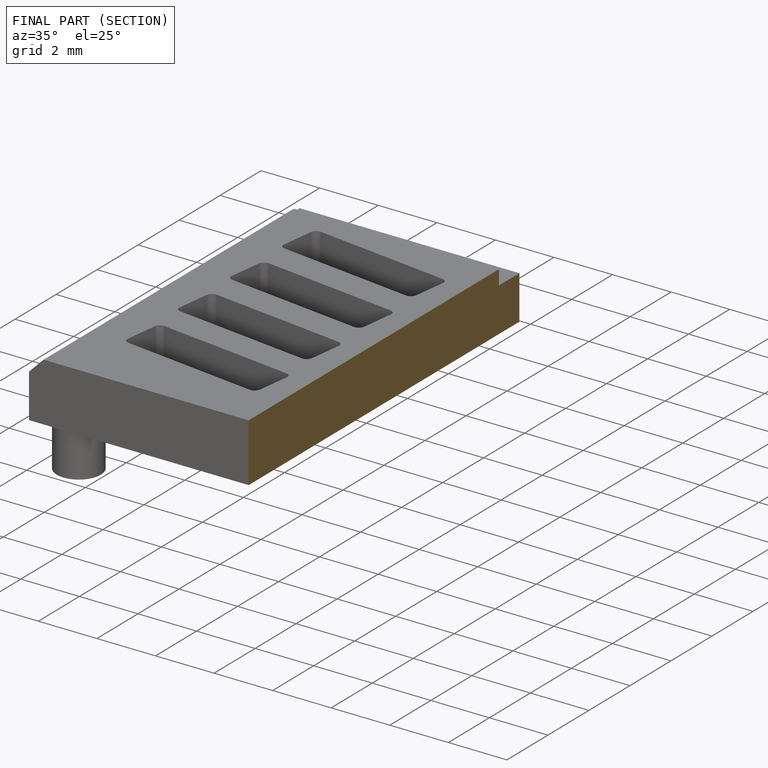
[diagram: finished part — half-section view (interior)]
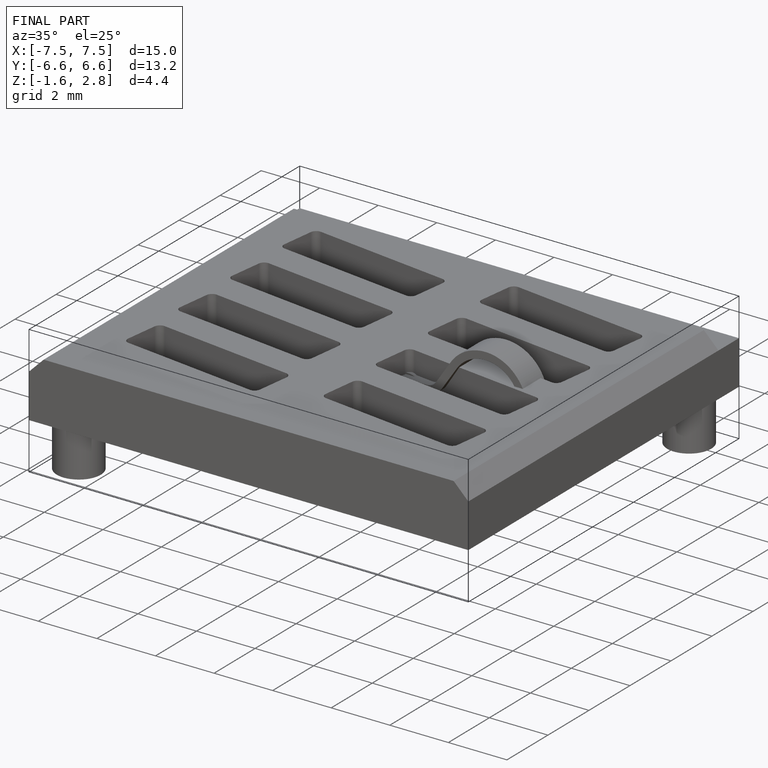
[diagram: finished part — iso view with bounding-box wireframe]
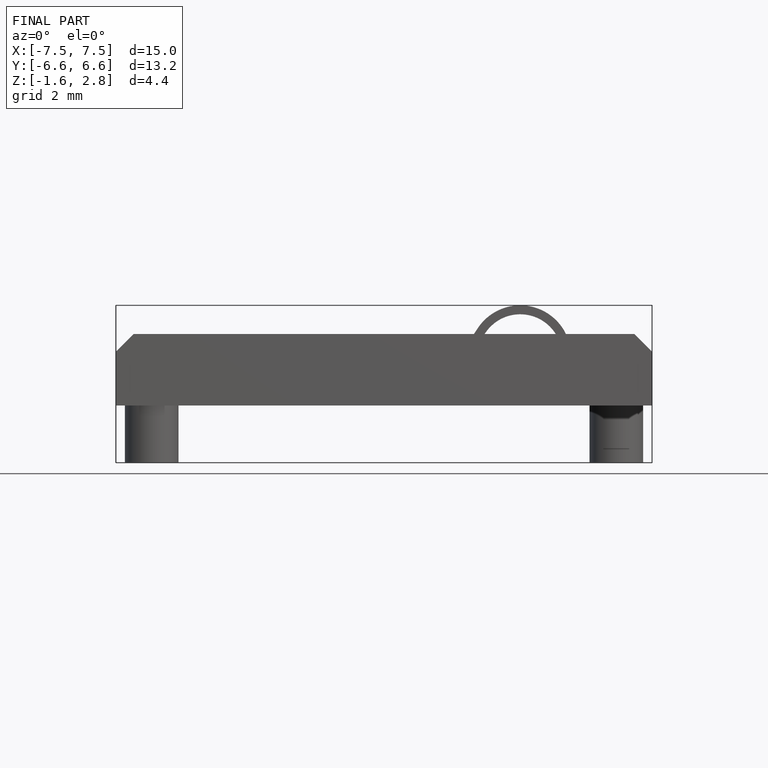
[diagram: finished part — front view with bounding-box wireframe]
